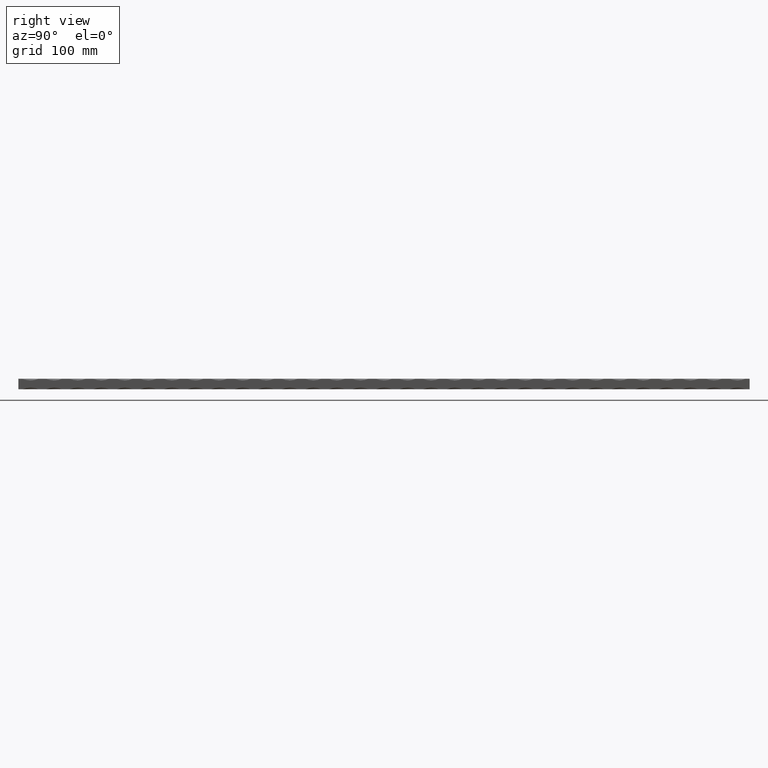
[diagram: clean part render]
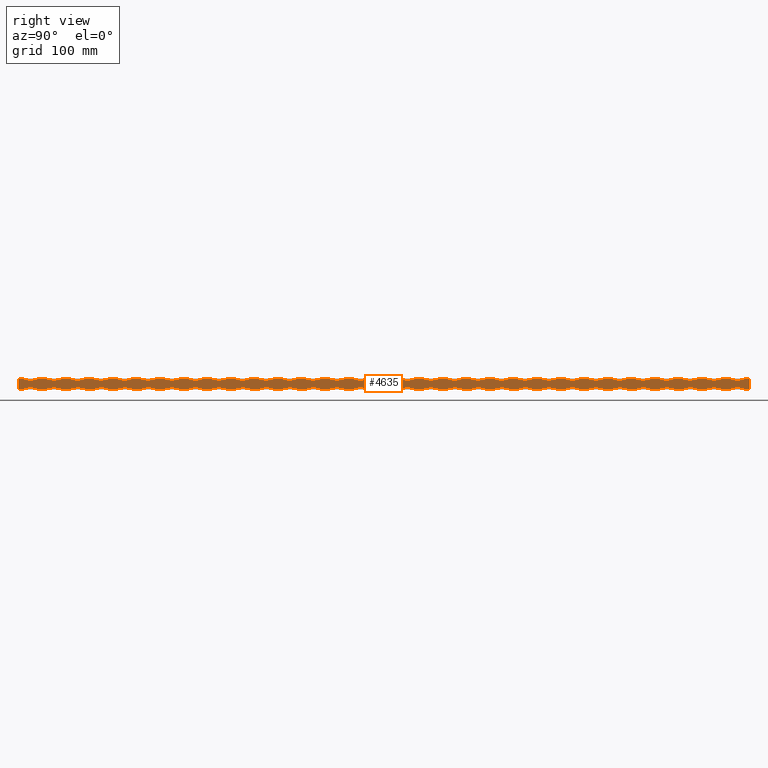
[diagram: same view with one face highlighted and labeled with its STEP entity id]
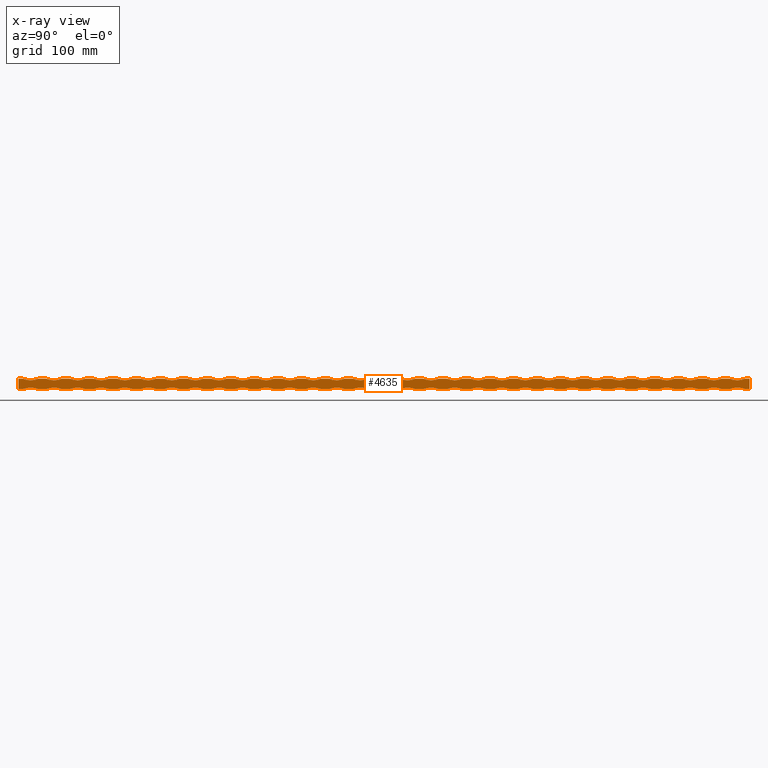
[diagram: x-ray of the same camera — body ghosted, the highlighted face saturated]
A machine part, right view. The second image highlights one B-rep face of the part: STEP entity #4635.
The next image is the same camera in x-ray: the body ghosted, the highlighted face saturated — about 0% of this face is hidden behind the body in this view.
In plain terms, the highlighted planar face has unit normal (-1, 0, 0).
Its self-contained STEP definition (entity closure, byte-faithful):
#6 = EDGE_CURVE ( 'NONE', #3308, #13469, #11347, .T. ) ;
#71 = LINE ( 'NONE', #5425, #3220 ) ;
#128 = ORIENTED_EDGE ( 'NONE', *, *, #14238, .T. ) ;
#159 = VERTEX_POINT ( 'NONE', #4299 ) ;
#166 = DIRECTION ( 'NONE',  ( -1.000000000000000000, 0.0000000000000000000, 2.668805347656626200E-016 ) ) ;
#170 = ORIENTED_EDGE ( 'NONE', *, *, #9149, .T. ) ;
#178 = EDGE_CURVE ( 'NONE', #10039, #3303, #13284, .T. ) ;
#189 = AXIS2_PLACEMENT_3D ( 'NONE', #5021, #14020, #453 ) ;
#195 = CARTESIAN_POINT ( 'NONE',  ( 6.499999999999987600, -116.0000000000000000, 30.50000000000000000 ) ) ;
#201 = CARTESIAN_POINT ( 'NONE',  ( 6.499999999999983100, -232.0000000000000000, -30.50000000000000000 ) ) ;
#221 = CARTESIAN_POINT ( 'NONE',  ( 6.499999999999997300, 450.0000000000000000, -6.499999999999999100 ) ) ;
#239 = DIRECTION ( 'NONE',  ( -1.000000000000000000, 0.0000000000000000000, 2.668805347656626200E-016 ) ) ;
#251 = VERTEX_POINT ( 'NONE', #4743 ) ;
#269 = LINE ( 'NONE', #2864, #1484 ) ;
#286 = AXIS2_PLACEMENT_3D ( 'NONE', #1749, #1939, #7549 ) ;
#287 = CARTESIAN_POINT ( 'NONE',  ( 6.499999999999976000, -68.00000000000000000, 6.500000000000000900 ) ) ;
#302 = CARTESIAN_POINT ( 'NONE',  ( 6.499999999999968900, 203.0000000000000000, 30.50000000000000000 ) ) ;
#333 = CARTESIAN_POINT ( 'NONE',  ( 6.499999999999973400, 116.0000000000000000, 30.50000000000000000 ) ) ;
#356 = VERTEX_POINT ( 'NONE', #1550 ) ;
#375 = ORIENTED_EDGE ( 'NONE', *, *, #9473, .F. ) ;
#377 = DIRECTION ( 'NONE',  ( -1.000000000000000000, 0.0000000000000000000, 2.668805347656626200E-016 ) ) ;
#453 = DIRECTION ( 'NONE',  ( 2.668805347656625700E-016, 0.0000000000000000000, 1.000000000000000000 ) ) ;
#454 = ORIENTED_EDGE ( 'NONE', *, *, #12233, .T. ) ;
#473 = AXIS2_PLACEMENT_3D ( 'NONE', #1451, #9315, #8200 ) ;
#489 = LINE ( 'NONE', #1193, #2785 ) ;
#495 = EDGE_CURVE ( 'NONE', #2002, #4431, #10630, .T. ) ;
#510 = CARTESIAN_POINT ( 'NONE',  ( 6.499999999999997300, 450.0000000000000000, -6.499999999999999100 ) ) ;
#535 = DIRECTION ( 'NONE',  ( 2.668805347656625700E-016, 0.0000000000000000000, 1.000000000000000000 ) ) ;
#538 = DIRECTION ( 'NONE',  ( -0.0000000000000000000, -1.000000000000000000, -0.0000000000000000000 ) ) ;
#556 = DIRECTION ( 'NONE',  ( -0.0000000000000000000, -1.000000000000000000, -0.0000000000000000000 ) ) ;
#565 = VERTEX_POINT ( 'NONE', #6845 ) ;
#584 = ORIENTED_EDGE ( 'NONE', *, *, #11377, .F. ) ;
#608 = CARTESIAN_POINT ( 'NONE',  ( 6.499999999999961800, 116.0000000000000000, -30.50000000000000000 ) ) ;
#613 = VERTEX_POINT ( 'NONE', #2513 ) ;
#625 = CARTESIAN_POINT ( 'NONE',  ( 6.500000000000002700, -425.0000000000000000, 6.500000000000000900 ) ) ;
#637 = DIRECTION ( 'NONE',  ( -0.0000000000000000000, -1.000000000000000000, -0.0000000000000000000 ) ) ;
#648 = CARTESIAN_POINT ( 'NONE',  ( 6.499999999999997300, -450.0000000000000000, -6.499999999999999100 ) ) ;
#655 = VERTEX_POINT ( 'NONE', #1440 ) ;
#656 = ORIENTED_EDGE ( 'NONE', *, *, #9062, .T. ) ;
#658 = DIRECTION ( 'NONE',  ( 2.668805347656625700E-016, 0.0000000000000000000, 1.000000000000000000 ) ) ;
#666 = CARTESIAN_POINT ( 'NONE',  ( 6.499999999999997300, 450.0000000000000000, -6.499999999999999100 ) ) ;
#673 = DIRECTION ( 'NONE',  ( -0.0000000000000000000, -1.000000000000000000, -0.0000000000000000000 ) ) ;
#676 = ORIENTED_EDGE ( 'NONE', *, *, #13273, .T. ) ;
#692 = VECTOR ( 'NONE', #1552, 1000.000000000000000 ) ;
#696 = CARTESIAN_POINT ( 'NONE',  ( 6.499999999999950300, 367.0000000000000000, 6.500000000000000900 ) ) ;
#708 = LINE ( 'NONE', #221, #9064 ) ;
#710 = ORIENTED_EDGE ( 'NONE', *, *, #1847, .F. ) ;
#766 = CIRCLE ( 'NONE', #10468, 26.00000000000000400 ) ;
#769 = CARTESIAN_POINT ( 'NONE',  ( 6.499999999999967100, 29.00000000000000000, -30.50000000000000000 ) ) ;
#784 = EDGE_CURVE ( 'NONE', #11901, #10136, #9201, .T. ) ;
#796 = CARTESIAN_POINT ( 'NONE',  ( 6.499999999999944000, 406.0000000000000000, -30.50000000000000000 ) ) ;
#802 = DIRECTION ( 'NONE',  ( 2.668805347656625700E-016, 0.0000000000000000000, 1.000000000000000000 ) ) ;
#803 = LINE ( 'NONE', #14204, #12854 ) ;
#808 = ORIENTED_EDGE ( 'NONE', *, *, #3794, .F. ) ;
#818 = CARTESIAN_POINT ( 'NONE',  ( 6.500000000000000900, -445.0000000000000000, 6.500000000000000900 ) ) ;
#851 = VERTEX_POINT ( 'NONE', #14302 ) ;
#864 = DIRECTION ( 'NONE',  ( -1.000000000000000000, 0.0000000000000000000, 2.668805347656626200E-016 ) ) ;
#878 = ORIENTED_EDGE ( 'NONE', *, *, #12104, .T. ) ;
#879 = DIRECTION ( 'NONE',  ( 2.668805347656625700E-016, 0.0000000000000000000, 1.000000000000000000 ) ) ;
#882 = CARTESIAN_POINT ( 'NONE',  ( 6.499999999999997300, 450.0000000000000000, -6.499999999999999100 ) ) ;
#888 = CIRCLE ( 'NONE', #5769, 26.00000000000000400 ) ;
#898 = VERTEX_POINT ( 'NONE', #11219 ) ;
#932 = CARTESIAN_POINT ( 'NONE',  ( 6.499999999999997300, 450.0000000000000000, -6.499999999999999100 ) ) ;
#944 = EDGE_CURVE ( 'NONE', #159, #5995, #7223, .T. ) ;
#948 = ORIENTED_EDGE ( 'NONE', *, *, #13489, .T. ) ;
#958 = CARTESIAN_POINT ( 'NONE',  ( 6.499999999999990200, -348.0000000000000600, -30.50000000000000000 ) ) ;
#961 = DIRECTION ( 'NONE',  ( -1.000000000000000000, 0.0000000000000000000, 2.668805347656626200E-016 ) ) ;
#975 = CARTESIAN_POINT ( 'NONE',  ( 6.499999999999965400, 58.00000000000000000, -30.50000000000000000 ) ) ;
#977 = LINE ( 'NONE', #8962, #1145 ) ;
#992 = VECTOR ( 'NONE', #8601, 1000.000000000000000 ) ;
#997 = ORIENTED_EDGE ( 'NONE', *, *, #9857, .T. ) ;
#1001 = DIRECTION ( 'NONE',  ( -0.0000000000000000000, -1.000000000000000000, -0.0000000000000000000 ) ) ;
#1005 = CIRCLE ( 'NONE', #11736, 26.00000000000000400 ) ;
#1043 = ORIENTED_EDGE ( 'NONE', *, *, #10368, .T. ) ;
#1050 = CARTESIAN_POINT ( 'NONE',  ( 6.499999999999995600, -213.0000000000000600, -6.500000000000000900 ) ) ;
#1069 = EDGE_CURVE ( 'NONE', #251, #5073, #13602, .T. ) ;
#1072 = DIRECTION ( 'NONE',  ( -1.000000000000000000, 0.0000000000000000000, 2.668805347656626200E-016 ) ) ;
#1103 = VERTEX_POINT ( 'NONE', #2758 ) ;
#1117 = CIRCLE ( 'NONE', #13757, 26.00000000000000400 ) ;
#1145 = VECTOR ( 'NONE', #2128, 1000.000000000000000 ) ;
#1153 = CARTESIAN_POINT ( 'NONE',  ( 6.500000000000002700, -309.0000000000000000, 6.500000000000000900 ) ) ;
#1193 = CARTESIAN_POINT ( 'NONE',  ( 6.500000000000000900, 450.0000000000000000, 6.500000000000000900 ) ) ;
#1201 = ORIENTED_EDGE ( 'NONE', *, *, #12452, .T. ) ;
#1208 = CARTESIAN_POINT ( 'NONE',  ( 6.500000000000008000, -435.0000000000000000, 30.50000000000000000 ) ) ;
#1244 = ORIENTED_EDGE ( 'NONE', *, *, #1539, .T. ) ;
#1245 = DIRECTION ( 'NONE',  ( -0.0000000000000000000, -1.000000000000000000, -0.0000000000000000000 ) ) ;
#1246 = VERTEX_POINT ( 'NONE', #4388 ) ;
#1250 = DIRECTION ( 'NONE',  ( -1.000000000000000000, 0.0000000000000000000, 2.668805347656626200E-016 ) ) ;
#1271 = AXIS2_PLACEMENT_3D ( 'NONE', #8075, #7076, #13808 ) ;
#1293 = EDGE_CURVE ( 'NONE', #14138, #10039, #6691, .T. ) ;
#1297 = DIRECTION ( 'NONE',  ( 2.668805347656625700E-016, 0.0000000000000000000, 1.000000000000000000 ) ) ;
#1330 = LINE ( 'NONE', #11291, #11976 ) ;
#1338 = VERTEX_POINT ( 'NONE', #3518 ) ;
#1339 = DIRECTION ( 'NONE',  ( -0.0000000000000000000, -1.000000000000000000, -0.0000000000000000000 ) ) ;
#1351 = DIRECTION ( 'NONE',  ( 2.668805347656625700E-016, 0.0000000000000000000, 1.000000000000000000 ) ) ;
#1359 = CIRCLE ( 'NONE', #9377, 26.00000000000000400 ) ;
#1360 = DIRECTION ( 'NONE',  ( 2.668805347656625700E-016, 0.0000000000000000000, 1.000000000000000000 ) ) ;
#1373 = VECTOR ( 'NONE', #4246, 1000.000000000000000 ) ;
#1378 = CARTESIAN_POINT ( 'NONE',  ( 6.499999999999997300, 450.0000000000000000, -6.499999999999999100 ) ) ;
#1386 = EDGE_CURVE ( 'NONE', #5557, #13730, #10601, .T. ) ;
#1389 = ORIENTED_EDGE ( 'NONE', *, *, #10691, .T. ) ;
#1396 = EDGE_CURVE ( 'NONE', #1755, #9411, #9734, .T. ) ;
#1397 = AXIS2_PLACEMENT_3D ( 'NONE', #5387, #961, #3157 ) ;
#1400 = CIRCLE ( 'NONE', #2366, 26.00000000000000400 ) ;
#1416 = EDGE_CURVE ( 'NONE', #9622, #8438, #13437, .T. ) ;
#1432 = ORIENTED_EDGE ( 'NONE', *, *, #12737, .F. ) ;
#1440 = CARTESIAN_POINT ( 'NONE',  ( 6.499999999999976000, -48.00000000000000000, -6.500000000000000900 ) ) ;
#1451 = CARTESIAN_POINT ( 'NONE',  ( 6.500000000000006200, -406.0000000000000000, 30.50000000000000000 ) ) ;
#1478 = CARTESIAN_POINT ( 'NONE',  ( 6.499999999999984000, -58.00000000000000000, 30.50000000000000000 ) ) ;
#1482 = LINE ( 'NONE', #2840, #5043 ) ;
#1484 = VECTOR ( 'NONE', #556, 1000.000000000000000 ) ;
#1501 = EDGE_CURVE ( 'NONE', #9527, #6297, #14640, .T. ) ;
#1528 = VECTOR ( 'NONE', #5473, 1000.000000000000000 ) ;
#1539 = EDGE_CURVE ( 'NONE', #3304, #1246, #9014, .T. ) ;
#1547 = ORIENTED_EDGE ( 'NONE', *, *, #12512, .T. ) ;
#1550 = CARTESIAN_POINT ( 'NONE',  ( 6.499999999999999100, -416.0000000000000600, 6.500000000000000900 ) ) ;
#1552 = DIRECTION ( 'NONE',  ( -0.0000000000000000000, -1.000000000000000000, -0.0000000000000000000 ) ) ;
#1568 = VERTEX_POINT ( 'NONE', #1984 ) ;
#1616 = CIRCLE ( 'NONE', #1397, 26.00000000000000400 ) ;
#1646 = CARTESIAN_POINT ( 'NONE',  ( 6.500000000000000900, 450.0000000000000000, 6.500000000000000900 ) ) ;
#1675 = CARTESIAN_POINT ( 'NONE',  ( 6.499999999999977800, -77.00000000000001400, -6.500000000000000900 ) ) ;
#1687 = CIRCLE ( 'NONE', #12552, 26.00000000000000400 ) ;
#1690 = CARTESIAN_POINT ( 'NONE',  ( 6.499999999999982200, -29.00000000000000000, 30.50000000000000000 ) ) ;
#1696 = LINE ( 'NONE', #3765, #6847 ) ;
#1749 = CARTESIAN_POINT ( 'NONE',  ( 6.499999999999942300, 435.0000000000000000, -30.50000000000000000 ) ) ;
#1751 = CARTESIAN_POINT ( 'NONE',  ( 6.499999999999999100, -280.0000000000000000, 6.500000000000000900 ) ) ;
#1755 = VERTEX_POINT ( 'NONE', #12079 ) ;
#1773 = ORIENTED_EDGE ( 'NONE', *, *, #9495, .T. ) ;
#1834 = VERTEX_POINT ( 'NONE', #4203 ) ;
#1847 = EDGE_CURVE ( 'NONE', #3514, #12083, #5616, .T. ) ;
#1849 = CIRCLE ( 'NONE', #4243, 26.00000000000000400 ) ;
#1865 = VERTEX_POINT ( 'NONE', #3223 ) ;
#1871 = VERTEX_POINT ( 'NONE', #5352 ) ;
#1882 = CIRCLE ( 'NONE', #286, 26.00000000000000400 ) ;
#1883 = ORIENTED_EDGE ( 'NONE', *, *, #6101, .T. ) ;
#1912 = EDGE_CURVE ( 'NONE', #4714, #2457, #10231, .T. ) ;
#1918 = DIRECTION ( 'NONE',  ( -0.0000000000000000000, -1.000000000000000000, -0.0000000000000000000 ) ) ;
#1930 = CARTESIAN_POINT ( 'NONE',  ( 6.499999999999976900, 58.00000000000000000, 30.50000000000000000 ) ) ;
#1939 = DIRECTION ( 'NONE',  ( -1.000000000000000000, 0.0000000000000000000, 2.668805347656626200E-016 ) ) ;
#1948 = DIRECTION ( 'NONE',  ( -0.0000000000000000000, -1.000000000000000000, -0.0000000000000000000 ) ) ;
#1955 = CARTESIAN_POINT ( 'NONE',  ( 6.499999999999962700, 164.0000000000000000, 6.500000000000000900 ) ) ;
#1963 = VERTEX_POINT ( 'NONE', #5689 ) ;
#1983 = DIRECTION ( 'NONE',  ( -1.000000000000000000, 0.0000000000000000000, 2.668805347656626200E-016 ) ) ;
#1984 = CARTESIAN_POINT ( 'NONE',  ( 6.499999999999952000, 358.0000000000000600, -6.500000000000000900 ) ) ;
#1991 = CIRCLE ( 'NONE', #9747, 26.00000000000000400 ) ;
#2002 = VERTEX_POINT ( 'NONE', #6181 ) ;
#2022 = CARTESIAN_POINT ( 'NONE',  ( 6.499999999999999100, 18.99999999999992500, -6.500000000000000900 ) ) ;
#2031 = CARTESIAN_POINT ( 'NONE',  ( 6.499999999999999100, 279.9999999999999400, -6.500000000000000900 ) ) ;
#2035 = VERTEX_POINT ( 'NONE', #14100 ) ;
#2075 = CARTESIAN_POINT ( 'NONE',  ( 6.499999999999996400, -387.0000000000000000, 6.500000000000000900 ) ) ;
#2079 = DIRECTION ( 'NONE',  ( -1.000000000000000000, 0.0000000000000000000, 2.668805347656626200E-016 ) ) ;
#2089 = CARTESIAN_POINT ( 'NONE',  ( 6.499999999999999100, 444.9999999999998900, 6.500000000000000900 ) ) ;
#2097 = CARTESIAN_POINT ( 'NONE',  ( 6.499999999999997300, 450.0000000000000000, -6.499999999999999100 ) ) ;
#2122 = CARTESIAN_POINT ( 'NONE',  ( 6.499999999999955600, 280.0000000000000000, 6.500000000000000900 ) ) ;
#2128 = DIRECTION ( 'NONE',  ( -0.0000000000000000000, -1.000000000000000000, -0.0000000000000000000 ) ) ;
#2168 = AXIS2_PLACEMENT_3D ( 'NONE', #9126, #3370, #5641 ) ;
#2185 = DIRECTION ( 'NONE',  ( -1.000000000000000000, 0.0000000000000000000, 2.668805347656626200E-016 ) ) ;
#2193 = ORIENTED_EDGE ( 'NONE', *, *, #4240, .T. ) ;
#2209 = CARTESIAN_POINT ( 'NONE',  ( 6.499999999999969800, 174.0000000000000300, 30.50000000000000000 ) ) ;
#2213 = LINE ( 'NONE', #3142, #7024 ) ;
#2219 = VERTEX_POINT ( 'NONE', #5624 ) ;
#2242 = EDGE_CURVE ( 'NONE', #11996, #6206, #7546, .T. ) ;
#2245 = CARTESIAN_POINT ( 'NONE',  ( 6.499999999999997300, 450.0000000000000000, -6.499999999999999100 ) ) ;
#2262 = VERTEX_POINT ( 'NONE', #5670 ) ;
#2271 = LINE ( 'NONE', #9638, #2640 ) ;
#2276 = DIRECTION ( 'NONE',  ( 2.668805347656625700E-016, 0.0000000000000000000, 1.000000000000000000 ) ) ;
#2278 = CARTESIAN_POINT ( 'NONE',  ( 6.499999999999980500, 0.0000000000000000000, 30.50000000000000000 ) ) ;
#2283 = ORIENTED_EDGE ( 'NONE', *, *, #9611, .T. ) ;
#2288 = DIRECTION ( 'NONE',  ( -1.000000000000000000, 0.0000000000000000000, 2.668805347656626200E-016 ) ) ;
#2303 = DIRECTION ( 'NONE',  ( -1.000000000000000000, 0.0000000000000000000, 2.668805347656626200E-016 ) ) ;
#2310 = VERTEX_POINT ( 'NONE', #5817 ) ;
#2321 = CARTESIAN_POINT ( 'NONE',  ( 6.500000000000004400, -377.0000000000000000, 30.50000000000000000 ) ) ;
#2339 = ORIENTED_EDGE ( 'NONE', *, *, #3256, .T. ) ;
#2353 = CIRCLE ( 'NONE', #9317, 26.00000000000000400 ) ;
#2361 = CARTESIAN_POINT ( 'NONE',  ( 6.499999999999997300, 450.0000000000000000, -6.499999999999999100 ) ) ;
#2364 = VERTEX_POINT ( 'NONE', #6851 ) ;
#2366 = AXIS2_PLACEMENT_3D ( 'NONE', #195, #9322, #10362 ) ;
#2368 = CIRCLE ( 'NONE', #14119, 26.00000000000000400 ) ;
#2378 = ORIENTED_EDGE ( 'NONE', *, *, #14555, .T. ) ;
#2380 = CARTESIAN_POINT ( 'NONE',  ( 6.499999999999967100, 232.0000000000000000, 30.50000000000000000 ) ) ;
#2419 = EDGE_CURVE ( 'NONE', #2999, #10319, #10053, .T. ) ;
#2420 = VECTOR ( 'NONE', #5451, 1000.000000000000000 ) ;
#2434 = CARTESIAN_POINT ( 'NONE',  ( 6.500000000000000900, 450.0000000000000000, 6.500000000000000900 ) ) ;
#2457 = VERTEX_POINT ( 'NONE', #11918 ) ;
#2466 = CIRCLE ( 'NONE', #6664, 26.00000000000000400 ) ;
#2485 = EDGE_CURVE ( 'NONE', #8985, #8438, #4176, .T. ) ;
#2508 = LINE ( 'NONE', #2936, #11241 ) ;
#2510 = DIRECTION ( 'NONE',  ( -1.000000000000000000, 0.0000000000000000000, 2.668805347656626200E-016 ) ) ;
#2513 = CARTESIAN_POINT ( 'NONE',  ( 6.499999999999987600, -222.0000000000000000, -6.500000000000000900 ) ) ;
#2516 = CARTESIAN_POINT ( 'NONE',  ( 6.499999999999997300, -261.0000000000000000, 30.50000000000000000 ) ) ;
#2523 = DIRECTION ( 'NONE',  ( -0.0000000000000000000, -1.000000000000000000, -0.0000000000000000000 ) ) ;
#2548 = CIRCLE ( 'NONE', #4201, 26.00000000000000400 ) ;
#2567 = DIRECTION ( 'NONE',  ( -1.000000000000000000, 0.0000000000000000000, 2.668805347656626200E-016 ) ) ;
#2581 = ORIENTED_EDGE ( 'NONE', *, *, #8646, .T. ) ;
#2616 = CARTESIAN_POINT ( 'NONE',  ( 6.499999999999999100, -39.00000000000005700, -6.500000000000000900 ) ) ;
#2640 = VECTOR ( 'NONE', #5062, 1000.000000000000000 ) ;
#2681 = ORIENTED_EDGE ( 'NONE', *, *, #944, .T. ) ;
#2713 = EDGE_CURVE ( 'NONE', #851, #4284, #7714, .T. ) ;
#2750 = CIRCLE ( 'NONE', #4451, 26.00000000000000400 ) ;
#2758 = CARTESIAN_POINT ( 'NONE',  ( 6.499999999999948500, 416.0000000000000600, -6.500000000000000900 ) ) ;
#2770 = CIRCLE ( 'NONE', #13934, 26.00000000000000400 ) ;
#2774 = CARTESIAN_POINT ( 'NONE',  ( 6.499999999999977800, -97.00000000000000000, 6.500000000000000900 ) ) ;
#2785 = VECTOR ( 'NONE', #1245, 1000.000000000000000 ) ;
#2821 = CARTESIAN_POINT ( 'NONE',  ( 6.500000000000000900, 450.0000000000000000, 6.500000000000000900 ) ) ;
#2829 = ORIENTED_EDGE ( 'NONE', *, *, #14300, .T. ) ;
#2840 = CARTESIAN_POINT ( 'NONE',  ( 6.499999999999997300, 450.0000000000000000, -6.499999999999999100 ) ) ;
#2864 = CARTESIAN_POINT ( 'NONE',  ( 6.500000000000000900, 450.0000000000000000, 6.500000000000000900 ) ) ;
#2865 = CARTESIAN_POINT ( 'NONE',  ( 6.499999999999953800, 329.0000000000000000, -6.500000000000000900 ) ) ;
#2869 = ORIENTED_EDGE ( 'NONE', *, *, #7776, .F. ) ;
#2887 = VERTEX_POINT ( 'NONE', #5827 ) ;
#2919 = CARTESIAN_POINT ( 'NONE',  ( 6.499999999999999100, -396.0000000000000000, -6.500000000000000900 ) ) ;
#2936 = CARTESIAN_POINT ( 'NONE',  ( 6.500000000000000900, 450.0000000000000000, 6.500000000000000900 ) ) ;
#2945 = EDGE_CURVE ( 'NONE', #356, #5566, #14606, .T. ) ;
#2954 = ORIENTED_EDGE ( 'NONE', *, *, #8238, .T. ) ;
#2972 = ORIENTED_EDGE ( 'NONE', *, *, #9912, .T. ) ;
#2999 = VERTEX_POINT ( 'NONE', #4885 ) ;
#3031 = EDGE_CURVE ( 'NONE', #11215, #2364, #2750, .T. ) ;
#3049 = AXIS2_PLACEMENT_3D ( 'NONE', #12673, #377, #4792 ) ;
#3066 = ORIENTED_EDGE ( 'NONE', *, *, #2485, .F. ) ;
#3077 = VERTEX_POINT ( 'NONE', #14043 ) ;
#3101 = ORIENTED_EDGE ( 'NONE', *, *, #9200, .T. ) ;
#3107 = DIRECTION ( 'NONE',  ( -1.000000000000000000, 0.0000000000000000000, 2.668805347656626200E-016 ) ) ;
#3140 = VECTOR ( 'NONE', #9870, 1000.000000000000000 ) ;
#3142 = CARTESIAN_POINT ( 'NONE',  ( 6.499999999999997300, 450.0000000000000000, -6.499999999999999100 ) ) ;
#3157 = DIRECTION ( 'NONE',  ( 2.668805347656625700E-016, 0.0000000000000000000, 1.000000000000000000 ) ) ;
#3201 = CARTESIAN_POINT ( 'NONE',  ( 6.499999999999949400, 319.0000000000000000, -30.50000000000000000 ) ) ;
#3209 = DIRECTION ( 'NONE',  ( -0.0000000000000000000, -1.000000000000000000, -0.0000000000000000000 ) ) ;
#3212 = DIRECTION ( 'NONE',  ( 2.668805347656625700E-016, 0.0000000000000000000, 1.000000000000000000 ) ) ;
#3220 = VECTOR ( 'NONE', #1001, 1000.000000000000000 ) ;
#3223 = CARTESIAN_POINT ( 'NONE',  ( 6.499999999999999100, -367.0000000000000000, 6.500000000000000900 ) ) ;
#3244 = DIRECTION ( 'NONE',  ( 2.668805347656626200E-016, 0.0000000000000000000, 1.000000000000000000 ) ) ;
#3253 = CARTESIAN_POINT ( 'NONE',  ( 6.500000000000002700, -338.0000000000000000, 6.500000000000000900 ) ) ;
#3256 = EDGE_CURVE ( 'NONE', #7115, #6129, #8431, .T. ) ;
#3268 = CARTESIAN_POINT ( 'NONE',  ( 6.499999999999984000, -164.0000000000000000, -6.500000000000000900 ) ) ;
#3270 = CARTESIAN_POINT ( 'NONE',  ( 6.499999999999995600, 221.9999999999999100, -6.500000000000000900 ) ) ;
#3273 = EDGE_CURVE ( 'NONE', #6206, #2035, #7353, .T. ) ;
#3303 = VERTEX_POINT ( 'NONE', #2122 ) ;
#3304 = VERTEX_POINT ( 'NONE', #2031 ) ;
#3308 = VERTEX_POINT ( 'NONE', #5565 ) ;
#3312 = EDGE_CURVE ( 'NONE', #13961, #2219, #2368, .T. ) ;
#3314 = LINE ( 'NONE', #666, #13979 ) ;
#3321 = CARTESIAN_POINT ( 'NONE',  ( 6.500000000000000900, 450.0000000000000000, 6.500000000000000900 ) ) ;
#3328 = ORIENTED_EDGE ( 'NONE', *, *, #11133, .T. ) ;
#3342 = DIRECTION ( 'NONE',  ( -1.000000000000000000, 0.0000000000000000000, 2.668805347656626200E-016 ) ) ;
#3352 = ORIENTED_EDGE ( 'NONE', *, *, #8348, .F. ) ;
#3366 = ORIENTED_EDGE ( 'NONE', *, *, #10928, .T. ) ;
#3370 = DIRECTION ( 'NONE',  ( -1.000000000000000000, 0.0000000000000000000, 2.668805347656626200E-016 ) ) ;
#3381 = EDGE_CURVE ( 'NONE', #6661, #10136, #6467, .T. ) ;
#3397 = CARTESIAN_POINT ( 'NONE',  ( 6.499999999999959100, 222.0000000000000000, 6.500000000000000900 ) ) ;
#3410 = DIRECTION ( 'NONE',  ( -1.000000000000000000, 0.0000000000000000000, 2.668805347656626200E-016 ) ) ;
#3412 = DIRECTION ( 'NONE',  ( -0.0000000000000000000, -1.000000000000000000, -0.0000000000000000000 ) ) ;
#3415 = LINE ( 'NONE', #11102, #5412 ) ;
#3428 = LINE ( 'NONE', #14150, #12696 ) ;
#3443 = CIRCLE ( 'NONE', #6286, 26.00000000000000400 ) ;
#3460 = DIRECTION ( 'NONE',  ( -1.000000000000000000, 0.0000000000000000000, 2.668805347656626200E-016 ) ) ;
#3472 = EDGE_CURVE ( 'NONE', #12808, #14138, #6814, .T. ) ;
#3491 = VERTEX_POINT ( 'NONE', #12744 ) ;
#3514 = VERTEX_POINT ( 'NONE', #5953 ) ;
#3518 = CARTESIAN_POINT ( 'NONE',  ( 6.499999999999999100, 212.9999999999999400, 6.500000000000000900 ) ) ;
#3519 = VERTEX_POINT ( 'NONE', #2774 ) ;
#3555 = CARTESIAN_POINT ( 'NONE',  ( 6.499999999999995600, -329.0000000000000000, -6.500000000000000900 ) ) ;
#3571 = DIRECTION ( 'NONE',  ( 2.668805347656625700E-016, 0.0000000000000000000, 1.000000000000000000 ) ) ;
#3590 = CARTESIAN_POINT ( 'NONE',  ( 6.499999999999995600, -358.0000000000000600, -6.500000000000000900 ) ) ;
#3606 = DIRECTION ( 'NONE',  ( 2.668805347656625700E-016, 0.0000000000000000000, 1.000000000000000000 ) ) ;
#3620 = DIRECTION ( 'NONE',  ( -1.000000000000000000, 0.0000000000000000000, 2.668805347656626200E-016 ) ) ;
#3625 = DIRECTION ( 'NONE',  ( -0.0000000000000000000, -1.000000000000000000, -0.0000000000000000000 ) ) ;
#3630 = CARTESIAN_POINT ( 'NONE',  ( 6.499999999999997300, 450.0000000000000000, -6.499999999999999100 ) ) ;
#3655 = VERTEX_POINT ( 'NONE', #9642 ) ;
#3665 = CIRCLE ( 'NONE', #9413, 26.00000000000000400 ) ;
#3684 = EDGE_CURVE ( 'NONE', #4235, #9537, #269, .T. ) ;
#3692 = CARTESIAN_POINT ( 'NONE',  ( 6.499999999999947600, 348.0000000000000600, -30.50000000000000000 ) ) ;
#3695 = ORIENTED_EDGE ( 'NONE', *, *, #11517, .T. ) ;
#3702 = EDGE_CURVE ( 'NONE', #3077, #12808, #14248, .T. ) ;
#3720 = VECTOR ( 'NONE', #673, 1000.000000000000000 ) ;
#3729 = ORIENTED_EDGE ( 'NONE', *, *, #6842, .T. ) ;
#3753 = ORIENTED_EDGE ( 'NONE', *, *, #13505, .T. ) ;
#3760 = ORIENTED_EDGE ( 'NONE', *, *, #5259, .F. ) ;
#3765 = CARTESIAN_POINT ( 'NONE',  ( 6.499999999999997300, 450.0000000000000000, -6.499999999999999100 ) ) ;
#3776 = CARTESIAN_POINT ( 'NONE',  ( 6.500000000000000900, 450.0000000000000000, 6.500000000000000900 ) ) ;
#3794 = EDGE_CURVE ( 'NONE', #4714, #613, #11790, .T. ) ;
#3866 = CARTESIAN_POINT ( 'NONE',  ( 6.499999999999999100, 47.99999999999992900, -6.500000000000000900 ) ) ;
#3868 = AXIS2_PLACEMENT_3D ( 'NONE', #3201, #1983, #9941 ) ;
#3923 = LINE ( 'NONE', #8205, #12628 ) ;
#3929 = CARTESIAN_POINT ( 'NONE',  ( 6.499999999999945800, 377.0000000000000000, -30.50000000000000000 ) ) ;
#3947 = VERTEX_POINT ( 'NONE', #3590 ) ;
#3954 = AXIS2_PLACEMENT_3D ( 'NONE', #2516, #4732, #1351 ) ;
#3977 = AXIS2_PLACEMENT_3D ( 'NONE', #11676, #7188, #4833 ) ;
#3986 = AXIS2_PLACEMENT_3D ( 'NONE', #2380, #5823, #9213 ) ;
#4007 = LINE ( 'NONE', #10639, #7384 ) ;
#4016 = EDGE_CURVE ( 'NONE', #8668, #5345, #2353, .T. ) ;
#4019 = CIRCLE ( 'NONE', #7185, 26.00000000000000400 ) ;
#4045 = EDGE_CURVE ( 'NONE', #898, #2002, #10014, .T. ) ;
#4061 = ORIENTED_EDGE ( 'NONE', *, *, #11682, .T. ) ;
#4070 = ORIENTED_EDGE ( 'NONE', *, *, #7649, .T. ) ;
#4097 = ORIENTED_EDGE ( 'NONE', *, *, #3273, .T. ) ;
#4121 = VERTEX_POINT ( 'NONE', #7370 ) ;
#4175 = DIRECTION ( 'NONE',  ( -0.0000000000000000000, -1.000000000000000000, -0.0000000000000000000 ) ) ;
#4176 = LINE ( 'NONE', #510, #992 ) ;
#4196 = CARTESIAN_POINT ( 'NONE',  ( 6.499999999999997300, 450.0000000000000000, -6.499999999999999100 ) ) ;
#4201 = AXIS2_PLACEMENT_3D ( 'NONE', #2321, #12548, #1297 ) ;
#4203 = CARTESIAN_POINT ( 'NONE',  ( 6.499999999999968900, 68.00000000000000000, -6.500000000000000900 ) ) ;
#4235 = VERTEX_POINT ( 'NONE', #11159 ) ;
#4240 = EDGE_CURVE ( 'NONE', #9432, #9271, #4681, .T. ) ;
#4243 = AXIS2_PLACEMENT_3D ( 'NONE', #7240, #6207, #14263 ) ;
#4246 = DIRECTION ( 'NONE',  ( -0.0000000000000000000, -1.000000000000000000, -0.0000000000000000000 ) ) ;
#4248 = DIRECTION ( 'NONE',  ( 2.668805347656625700E-016, 0.0000000000000000000, 1.000000000000000000 ) ) ;
#4256 = VERTEX_POINT ( 'NONE', #12415 ) ;
#4263 = EDGE_CURVE ( 'NONE', #12634, #3077, #1117, .T. ) ;
#4283 = ORIENTED_EDGE ( 'NONE', *, *, #12125, .F. ) ;
#4284 = VERTEX_POINT ( 'NONE', #4487 ) ;
#4296 = ORIENTED_EDGE ( 'NONE', *, *, #1396, .T. ) ;
#4299 = CARTESIAN_POINT ( 'NONE',  ( 6.499999999999957400, 251.0000000000000000, 6.500000000000000900 ) ) ;
#4305 = VERTEX_POINT ( 'NONE', #2089 ) ;
#4322 = DIRECTION ( 'NONE',  ( 2.668805347656625700E-016, 0.0000000000000000000, 1.000000000000000000 ) ) ;
#4346 = CARTESIAN_POINT ( 'NONE',  ( 6.499999999999962700, 184.0000000000000300, -6.500000000000000900 ) ) ;
#4357 = CARTESIAN_POINT ( 'NONE',  ( 6.499999999999986700, -290.0000000000000600, -30.50000000000000000 ) ) ;
#4372 = VECTOR ( 'NONE', #5279, 1000.000000000000000 ) ;
#4382 = AXIS2_PLACEMENT_3D ( 'NONE', #3692, #7084, #13907 ) ;
#4388 = CARTESIAN_POINT ( 'NONE',  ( 6.499999999999955600, 300.0000000000000600, -6.500000000000000900 ) ) ;
#4394 = AXIS2_PLACEMENT_3D ( 'NONE', #4357, #14360, #12148 ) ;
#4407 = CARTESIAN_POINT ( 'NONE',  ( 6.499999999999999100, 76.99999999999992900, -6.500000000000000900 ) ) ;
#4426 = VERTEX_POINT ( 'NONE', #9214 ) ;
#4431 = VERTEX_POINT ( 'NONE', #6014 ) ;
#4433 = CARTESIAN_POINT ( 'NONE',  ( 6.499999999999997300, 450.0000000000000000, -6.499999999999999100 ) ) ;
#4441 = AXIS2_PLACEMENT_3D ( 'NONE', #1208, #10049, #3212 ) ;
#4451 = AXIS2_PLACEMENT_3D ( 'NONE', #1690, #14181, #9663 ) ;
#4481 = VERTEX_POINT ( 'NONE', #3866 ) ;
#4487 = CARTESIAN_POINT ( 'NONE',  ( 6.499999999999959100, 242.0000000000000300, -6.500000000000000900 ) ) ;
#4507 = CIRCLE ( 'NONE', #3049, 26.00000000000000400 ) ;
#4509 = VERTEX_POINT ( 'NONE', #2919 ) ;
#4511 = DIRECTION ( 'NONE',  ( 2.668805347656625700E-016, 0.0000000000000000000, 1.000000000000000000 ) ) ;
#4528 = EDGE_CURVE ( 'NONE', #11901, #655, #766, .T. ) ;
#4533 = CARTESIAN_POINT ( 'NONE',  ( 6.499999999999999100, -68.00000000000005700, -6.500000000000000900 ) ) ;
#4554 = AXIS2_PLACEMENT_3D ( 'NONE', #13156, #13205, #14269 ) ;
#4570 = VECTOR ( 'NONE', #8406, 1000.000000000000000 ) ;
#4581 = DIRECTION ( 'NONE',  ( -0.0000000000000000000, -1.000000000000000000, -0.0000000000000000000 ) ) ;
#4582 = DIRECTION ( 'NONE',  ( -1.000000000000000000, 0.0000000000000000000, 2.668805347656626200E-016 ) ) ;
#4599 = CARTESIAN_POINT ( 'NONE',  ( 6.499999999999993800, -203.0000000000000000, 30.50000000000000000 ) ) ;
#4603 = ORIENTED_EDGE ( 'NONE', *, *, #11472, .T. ) ;
#4617 = DIRECTION ( 'NONE',  ( -0.0000000000000000000, -1.000000000000000000, -0.0000000000000000000 ) ) ;
#4619 = VERTEX_POINT ( 'NONE', #11046 ) ;
#4625 = VERTEX_POINT ( 'NONE', #6701 ) ;
#4629 = AXIS2_PLACEMENT_3D ( 'NONE', #9005, #14657, #13631 ) ;
#4630 = VERTEX_POINT ( 'NONE', #2075 ) ;
#4635 = ADVANCED_FACE ( 'NONE', ( #13000 ), #13487, .F. ) ;
#4661 = DIRECTION ( 'NONE',  ( -1.000000000000000000, 0.0000000000000000000, 2.668805347656626200E-016 ) ) ;
#4670 = ORIENTED_EDGE ( 'NONE', *, *, #7004, .T. ) ;
#4681 = CIRCLE ( 'NONE', #10939, 26.00000000000000400 ) ;
#4690 = DIRECTION ( 'NONE',  ( -1.000000000000000000, 0.0000000000000000000, 2.668805347656626200E-016 ) ) ;
#4706 = DIRECTION ( 'NONE',  ( 2.668805347656625700E-016, 0.0000000000000000000, 1.000000000000000000 ) ) ;
#4707 = VECTOR ( 'NONE', #1339, 1000.000000000000000 ) ;
#4714 = VERTEX_POINT ( 'NONE', #1050 ) ;
#4717 = EDGE_CURVE ( 'NONE', #10958, #10213, #12647, .T. ) ;
#4732 = DIRECTION ( 'NONE',  ( -1.000000000000000000, 0.0000000000000000000, 2.668805347656626200E-016 ) ) ;
#4743 = CARTESIAN_POINT ( 'NONE',  ( 6.499999999999999100, 163.9999999999999100, -6.500000000000000900 ) ) ;
#4754 = CARTESIAN_POINT ( 'NONE',  ( 6.499999999999966200, 126.0000000000000000, -6.500000000000000900 ) ) ;
#4756 = VECTOR ( 'NONE', #14490, 1000.000000000000000 ) ;
#4761 = AXIS2_PLACEMENT_3D ( 'NONE', #10386, #166, #3606 ) ;
#4790 = DIRECTION ( 'NONE',  ( 2.668805347656625700E-016, 0.0000000000000000000, 1.000000000000000000 ) ) ;
#4792 = DIRECTION ( 'NONE',  ( 2.668805347656625700E-016, 0.0000000000000000000, 1.000000000000000000 ) ) ;
#4795 = VERTEX_POINT ( 'NONE', #3555 ) ;
#4809 = LINE ( 'NONE', #882, #5518 ) ;
#4833 = DIRECTION ( 'NONE',  ( 2.668805347656625700E-016, 0.0000000000000000000, 1.000000000000000000 ) ) ;
#4862 = ORIENTED_EDGE ( 'NONE', *, *, #12996, .T. ) ;
#4865 = CARTESIAN_POINT ( 'NONE',  ( 6.499999999999964500, 155.0000000000000300, -6.500000000000000900 ) ) ;
#4872 = VERTEX_POINT ( 'NONE', #696 ) ;
#4885 = CARTESIAN_POINT ( 'NONE',  ( 6.499999999999999100, -387.0000000000000000, -6.500000000000000900 ) ) ;
#4924 = CARTESIAN_POINT ( 'NONE',  ( 6.500000000000002700, 357.9999999999999400, 6.500000000000000900 ) ) ;
#4936 = AXIS2_PLACEMENT_3D ( 'NONE', #12497, #1250, #5862 ) ;
#4963 = CARTESIAN_POINT ( 'NONE',  ( 6.499999999999999100, 192.9999999999999100, -6.500000000000000900 ) ) ;
#4981 = CARTESIAN_POINT ( 'NONE',  ( 6.500000000000000900, 450.0000000000000000, 6.500000000000000900 ) ) ;
#4985 = VERTEX_POINT ( 'NONE', #7093 ) ;
#4999 = DIRECTION ( 'NONE',  ( -1.000000000000000000, 0.0000000000000000000, 2.668805347656626200E-016 ) ) ;
#5016 = DIRECTION ( 'NONE',  ( -1.000000000000000000, 0.0000000000000000000, 2.668805347656626200E-016 ) ) ;
#5021 = CARTESIAN_POINT ( 'NONE',  ( 6.499999999999961800, 319.0000000000000000, 30.50000000000000000 ) ) ;
#5035 = CARTESIAN_POINT ( 'NONE',  ( 6.499999999999997300, 450.0000000000000000, -6.499999999999999100 ) ) ;
#5039 = CARTESIAN_POINT ( 'NONE',  ( 6.499999999999991100, -280.0000000000000000, -6.500000000000000900 ) ) ;
#5043 = VECTOR ( 'NONE', #13061, 1000.000000000000000 ) ;
#5054 = CARTESIAN_POINT ( 'NONE',  ( 6.499999999999997300, 450.0000000000000000, -6.499999999999999100 ) ) ;
#5062 = DIRECTION ( 'NONE',  ( -0.0000000000000000000, -1.000000000000000000, -0.0000000000000000000 ) ) ;
#5073 = VERTEX_POINT ( 'NONE', #4865 ) ;
#5079 = DIRECTION ( 'NONE',  ( -1.000000000000000000, 0.0000000000000000000, 2.668805347656626200E-016 ) ) ;
#5092 = AXIS2_PLACEMENT_3D ( 'NONE', #3929, #6171, #11883 ) ;
#5096 = VECTOR ( 'NONE', #10759, 1000.000000000000000 ) ;
#5112 = CARTESIAN_POINT ( 'NONE',  ( 6.499999999999989300, -251.0000000000000000, -6.500000000000000900 ) ) ;
#5122 = DIRECTION ( 'NONE',  ( -0.0000000000000000000, -1.000000000000000000, -0.0000000000000000000 ) ) ;
#5216 = CARTESIAN_POINT ( 'NONE',  ( 6.499999999999997300, -450.0000000000000000, -6.499999999999999100 ) ) ;
#5223 = DIRECTION ( 'NONE',  ( -0.0000000000000000000, -1.000000000000000000, -0.0000000000000000000 ) ) ;
#5243 = LINE ( 'NONE', #1378, #6666 ) ;
#5259 = EDGE_CURVE ( 'NONE', #8668, #5332, #4809, .T. ) ;
#5279 = DIRECTION ( 'NONE',  ( -0.0000000000000000000, -1.000000000000000000, -0.0000000000000000000 ) ) ;
#5292 = EDGE_CURVE ( 'NONE', #9299, #10213, #8547, .T. ) ;
#5294 = EDGE_CURVE ( 'NONE', #13469, #3655, #12078, .T. ) ;
#5332 = VERTEX_POINT ( 'NONE', #4346 ) ;
#5345 = VERTEX_POINT ( 'NONE', #12281 ) ;
#5352 = CARTESIAN_POINT ( 'NONE',  ( 6.499999999999979600, -126.0000000000000000, 6.500000000000000900 ) ) ;
#5361 = AXIS2_PLACEMENT_3D ( 'NONE', #2209, #13625, #13675 ) ;
#5387 = CARTESIAN_POINT ( 'NONE',  ( 6.499999999999963600, 87.00000000000001400, -30.50000000000000000 ) ) ;
#5402 = ORIENTED_EDGE ( 'NONE', *, *, #3702, .T. ) ;
#5412 = VECTOR ( 'NONE', #11958, 1000.000000000000000 ) ;
#5420 = CARTESIAN_POINT ( 'NONE',  ( 6.499999999999997300, 450.0000000000000000, -6.499999999999999100 ) ) ;
#5425 = CARTESIAN_POINT ( 'NONE',  ( 6.499999999999997300, 450.0000000000000000, -6.499999999999999100 ) ) ;
#5446 = DIRECTION ( 'NONE',  ( 2.668805347656625700E-016, 0.0000000000000000000, 1.000000000000000000 ) ) ;
#5448 = DIRECTION ( 'NONE',  ( -0.0000000000000000000, -1.000000000000000000, -0.0000000000000000000 ) ) ;
#5451 = DIRECTION ( 'NONE',  ( -2.668805347656626700E-016, -0.0000000000000000000, -1.000000000000000000 ) ) ;
#5454 = VECTOR ( 'NONE', #11869, 1000.000000000000000 ) ;
#5473 = DIRECTION ( 'NONE',  ( -0.0000000000000000000, -1.000000000000000000, -0.0000000000000000000 ) ) ;
#5518 = VECTOR ( 'NONE', #11121, 1000.000000000000000 ) ;
#5535 = CARTESIAN_POINT ( 'NONE',  ( 6.499999999999964500, 135.0000000000000000, 6.500000000000000900 ) ) ;
#5557 = VERTEX_POINT ( 'NONE', #1751 ) ;
#5559 = AXIS2_PLACEMENT_3D ( 'NONE', #5585, #13334, #879 ) ;
#5565 = CARTESIAN_POINT ( 'NONE',  ( 6.499999999999968900, 48.00000000000000000, 6.500000000000000900 ) ) ;
#5566 = VERTEX_POINT ( 'NONE', #625 ) ;
#5575 = DIRECTION ( 'NONE',  ( -0.0000000000000000000, -1.000000000000000000, -0.0000000000000000000 ) ) ;
#5585 = CARTESIAN_POINT ( 'NONE',  ( 6.499999999999954700, 232.0000000000000000, -30.50000000000000000 ) ) ;
#5613 = EDGE_CURVE ( 'NONE', #6208, #4426, #10132, .T. ) ;
#5616 = LINE ( 'NONE', #13335, #7922 ) ;
#5624 = CARTESIAN_POINT ( 'NONE',  ( 6.499999999999992900, -329.0000000000000000, 6.500000000000000900 ) ) ;
#5641 = DIRECTION ( 'NONE',  ( 2.668805347656625700E-016, 0.0000000000000000000, 1.000000000000000000 ) ) ;
#5670 = CARTESIAN_POINT ( 'NONE',  ( 6.500000000000000900, -425.0000000000000000, -6.500000000000000900 ) ) ;
#5673 = DIRECTION ( 'NONE',  ( -0.0000000000000000000, -1.000000000000000000, -0.0000000000000000000 ) ) ;
#5679 = ORIENTED_EDGE ( 'NONE', *, *, #3312, .T. ) ;
#5689 = CARTESIAN_POINT ( 'NONE',  ( 6.499999999999982200, -135.0000000000000000, -6.500000000000000900 ) ) ;
#5698 = CARTESIAN_POINT ( 'NONE',  ( 6.499999999999995600, -232.0000000000000000, 30.50000000000000000 ) ) ;
#5707 = ORIENTED_EDGE ( 'NONE', *, *, #8305, .T. ) ;
#5718 = ORIENTED_EDGE ( 'NONE', *, *, #6633, .T. ) ;
#5737 = DIRECTION ( 'NONE',  ( 2.668805347656625700E-016, 0.0000000000000000000, 1.000000000000000000 ) ) ;
#5747 = ORIENTED_EDGE ( 'NONE', *, *, #5613, .T. ) ;
#5768 = CARTESIAN_POINT ( 'NONE',  ( 6.500000000000000900, 450.0000000000000000, 6.500000000000000900 ) ) ;
#5769 = AXIS2_PLACEMENT_3D ( 'NONE', #796, #12056, #13200 ) ;
#5776 = DIRECTION ( 'NONE',  ( 2.668805347656625700E-016, 0.0000000000000000000, 1.000000000000000000 ) ) ;
#5793 = CIRCLE ( 'NONE', #3977, 26.00000000000000400 ) ;
#5801 = LINE ( 'NONE', #11917, #5454 ) ;
#5807 = DIRECTION ( 'NONE',  ( -0.0000000000000000000, -1.000000000000000000, -0.0000000000000000000 ) ) ;
#5811 = VECTOR ( 'NONE', #5575, 1000.000000000000000 ) ;
#5817 = CARTESIAN_POINT ( 'NONE',  ( 6.499999999999970700, 39.00000000000000000, -6.500000000000000900 ) ) ;
#5823 = DIRECTION ( 'NONE',  ( -1.000000000000000000, 0.0000000000000000000, 2.668805347656626200E-016 ) ) ;
#5826 = VECTOR ( 'NONE', #5448, 1000.000000000000000 ) ;
#5827 = CARTESIAN_POINT ( 'NONE',  ( 6.499999999999999100, 96.99999999999994300, 6.500000000000000900 ) ) ;
#5862 = DIRECTION ( 'NONE',  ( 2.668805347656625700E-016, 0.0000000000000000000, 1.000000000000000000 ) ) ;
#5869 = DIRECTION ( 'NONE',  ( -0.0000000000000000000, -1.000000000000000000, -0.0000000000000000000 ) ) ;
#5879 = CARTESIAN_POINT ( 'NONE',  ( 6.499999999999969800, -29.00000000000000000, -30.50000000000000000 ) ) ;
#5883 = EDGE_CURVE ( 'NONE', #9411, #11215, #9606, .T. ) ;
#5939 = EDGE_CURVE ( 'NONE', #5995, #12436, #12767, .T. ) ;
#5945 = ORIENTED_EDGE ( 'NONE', *, *, #784, .F. ) ;
#5953 = CARTESIAN_POINT ( 'NONE',  ( 6.499999999999999100, -155.0000000000000600, -6.500000000000000900 ) ) ;
#5963 = CARTESIAN_POINT ( 'NONE',  ( 6.499999999999999100, -396.0000000000000000, 6.500000000000000900 ) ) ;
#5978 = VECTOR ( 'NONE', #13009, 1000.000000000000000 ) ;
#5991 = ORIENTED_EDGE ( 'NONE', *, *, #7177, .T. ) ;
#5995 = VERTEX_POINT ( 'NONE', #12604 ) ;
#6010 = LINE ( 'NONE', #9075, #9582 ) ;
#6014 = CARTESIAN_POINT ( 'NONE',  ( 6.499999999999948500, 396.0000000000000000, 6.500000000000000900 ) ) ;
#6030 = DIRECTION ( 'NONE',  ( -1.000000000000000000, 0.0000000000000000000, 2.668805347656626200E-016 ) ) ;
#6036 = ORIENTED_EDGE ( 'NONE', *, *, #10055, .T. ) ;
#6063 = EDGE_CURVE ( 'NONE', #4305, #898, #6213, .T. ) ;
#6065 = EDGE_CURVE ( 'NONE', #13396, #8927, #708, .T. ) ;
#6101 = EDGE_CURVE ( 'NONE', #6397, #9575, #2466, .T. ) ;
#6111 = ORIENTED_EDGE ( 'NONE', *, *, #6956, .F. ) ;
#6127 = CARTESIAN_POINT ( 'NONE',  ( 6.499999999999960000, 145.0000000000000300, -30.50000000000000000 ) ) ;
#6129 = VERTEX_POINT ( 'NONE', #8490 ) ;
#6140 = DIRECTION ( 'NONE',  ( 2.668805347656625700E-016, 0.0000000000000000000, 1.000000000000000000 ) ) ;
#6154 = EDGE_CURVE ( 'NONE', #3947, #10319, #2271, .T. ) ;
#6156 = DIRECTION ( 'NONE',  ( -0.0000000000000000000, -1.000000000000000000, -0.0000000000000000000 ) ) ;
#6162 = CARTESIAN_POINT ( 'NONE',  ( 6.499999999999994700, -406.0000000000000000, -30.50000000000000000 ) ) ;
#6171 = DIRECTION ( 'NONE',  ( -1.000000000000000000, 0.0000000000000000000, 2.668805347656626200E-016 ) ) ;
#6181 = CARTESIAN_POINT ( 'NONE',  ( 6.499999999999999100, 415.9999999999999400, 6.500000000000000900 ) ) ;
#6186 = CARTESIAN_POINT ( 'NONE',  ( 6.500000000000000900, 450.0000000000000000, 6.500000000000000900 ) ) ;
#6206 = VERTEX_POINT ( 'NONE', #10728 ) ;
#6207 = DIRECTION ( 'NONE',  ( -1.000000000000000000, 0.0000000000000000000, 2.668805347656626200E-016 ) ) ;
#6208 = VERTEX_POINT ( 'NONE', #10677 ) ;
#6213 = CIRCLE ( 'NONE', #4761, 26.00000000000000400 ) ;
#6217 = VERTEX_POINT ( 'NONE', #10576 ) ;
#6253 = DIRECTION ( 'NONE',  ( -0.0000000000000000000, -1.000000000000000000, -0.0000000000000000000 ) ) ;
#6266 = CARTESIAN_POINT ( 'NONE',  ( 6.500000000000000900, 450.0000000000000000, 6.500000000000000900 ) ) ;
#6282 = EDGE_CURVE ( 'NONE', #7909, #12083, #7977, .T. ) ;
#6286 = AXIS2_PLACEMENT_3D ( 'NONE', #1930, #7633, #6648 ) ;
#6297 = VERTEX_POINT ( 'NONE', #5112 ) ;
#6313 = ORIENTED_EDGE ( 'NONE', *, *, #10035, .T. ) ;
#6322 = CARTESIAN_POINT ( 'NONE',  ( 6.500000000000000900, 450.0000000000000000, 6.500000000000000900 ) ) ;
#6357 = AXIS2_PLACEMENT_3D ( 'NONE', #10083, #3107, #3244 ) ;
#6367 = ORIENTED_EDGE ( 'NONE', *, *, #14091, .F. ) ;
#6376 = CARTESIAN_POINT ( 'NONE',  ( 6.500000000000000900, 450.0000000000000000, 6.500000000000000900 ) ) ;
#6397 = VERTEX_POINT ( 'NONE', #9783 ) ;
#6422 = CIRCLE ( 'NONE', #12948, 26.00000000000000400 ) ;
#6423 = AXIS2_PLACEMENT_3D ( 'NONE', #11445, #3460, #5776 ) ;
#6427 = DIRECTION ( 'NONE',  ( -0.0000000000000000000, -1.000000000000000000, -0.0000000000000000000 ) ) ;
#6467 = CIRCLE ( 'NONE', #4936, 26.00000000000000400 ) ;
#6475 = ORIENTED_EDGE ( 'NONE', *, *, #7823, .F. ) ;
#6476 = CIRCLE ( 'NONE', #8286, 26.00000000000000400 ) ;
#6489 = VECTOR ( 'NONE', #11756, 1000.000000000000000 ) ;
#6508 = CARTESIAN_POINT ( 'NONE',  ( 6.499999999999999100, 183.9999999999999400, 6.500000000000000900 ) ) ;
#6544 = CARTESIAN_POINT ( 'NONE',  ( 6.499999999999997300, 450.0000000000000000, -6.499999999999999100 ) ) ;
#6564 = DIRECTION ( 'NONE',  ( 2.668805347656625700E-016, 0.0000000000000000000, 1.000000000000000000 ) ) ;
#6579 = ORIENTED_EDGE ( 'NONE', *, *, #13725, .T. ) ;
#6623 = LINE ( 'NONE', #9429, #7150 ) ;
#6633 = EDGE_CURVE ( 'NONE', #7469, #1871, #1400, .T. ) ;
#6636 = EDGE_CURVE ( 'NONE', #6906, #14258, #8154, .T. ) ;
#6638 = CARTESIAN_POINT ( 'NONE',  ( 6.499999999999995600, 105.9999999999999300, -6.500000000000000900 ) ) ;
#6648 = DIRECTION ( 'NONE',  ( 2.668805347656625700E-016, 0.0000000000000000000, 1.000000000000000000 ) ) ;
#6661 = VERTEX_POINT ( 'NONE', #7860 ) ;
#6663 = CARTESIAN_POINT ( 'NONE',  ( 6.499999999999999100, 424.9999999999998900, -6.500000000000000900 ) ) ;
#6664 = AXIS2_PLACEMENT_3D ( 'NONE', #10438, #2510, #12693 ) ;
#6666 = VECTOR ( 'NONE', #10428, 1000.000000000000000 ) ;
#6691 = LINE ( 'NONE', #8873, #12719 ) ;
#6693 = CARTESIAN_POINT ( 'NONE',  ( 6.499999999999988500, -319.0000000000000000, -30.50000000000000000 ) ) ;
#6699 = CIRCLE ( 'NONE', #8647, 26.00000000000000400 ) ;
#6701 = CARTESIAN_POINT ( 'NONE',  ( 6.499999999999968000, 97.00000000000000000, -6.500000000000000900 ) ) ;
#6721 = LINE ( 'NONE', #13362, #13627 ) ;
#6744 = EDGE_CURVE ( 'NONE', #9299, #1568, #12047, .T. ) ;
#6780 = ORIENTED_EDGE ( 'NONE', *, *, #9448, .F. ) ;
#6814 = CIRCLE ( 'NONE', #189, 26.00000000000000400 ) ;
#6842 = EDGE_CURVE ( 'NONE', #3655, #1755, #6010, .T. ) ;
#6845 = CARTESIAN_POINT ( 'NONE',  ( 6.499999999999950300, 387.0000000000000000, -6.500000000000000900 ) ) ;
#6847 = VECTOR ( 'NONE', #2523, 1000.000000000000000 ) ;
#6851 = CARTESIAN_POINT ( 'NONE',  ( 6.499999999999974200, -39.00000000000000000, 6.500000000000000900 ) ) ;
#6855 = DIRECTION ( 'NONE',  ( -1.000000000000000000, 0.0000000000000000000, 2.668805347656626200E-016 ) ) ;
#6856 = CIRCLE ( 'NONE', #5559, 26.00000000000000400 ) ;
#6857 = DIRECTION ( 'NONE',  ( 2.668805347656625700E-016, 0.0000000000000000000, 1.000000000000000000 ) ) ;
#6867 = CARTESIAN_POINT ( 'NONE',  ( 6.499999999999999100, 395.9999999999998900, -6.500000000000000900 ) ) ;
#6886 = EDGE_CURVE ( 'NONE', #4121, #13813, #14332, .T. ) ;
#6894 = CARTESIAN_POINT ( 'NONE',  ( 6.499999999999989300, -271.0000000000000000, 6.500000000000000900 ) ) ;
#6898 = CARTESIAN_POINT ( 'NONE',  ( 6.499999999999990200, -145.0000000000000300, 30.50000000000000000 ) ) ;
#6904 = DIRECTION ( 'NONE',  ( 2.668805347656625700E-016, 0.0000000000000000000, 1.000000000000000000 ) ) ;
#6906 = VERTEX_POINT ( 'NONE', #13937 ) ;
#6910 = DIRECTION ( 'NONE',  ( 2.668805347656625700E-016, 0.0000000000000000000, 1.000000000000000000 ) ) ;
#6951 = CIRCLE ( 'NONE', #7829, 26.00000000000000400 ) ;
#6956 = EDGE_CURVE ( 'NONE', #10287, #1834, #9225, .T. ) ;
#6964 = ORIENTED_EDGE ( 'NONE', *, *, #11001, .T. ) ;
#6969 = CARTESIAN_POINT ( 'NONE',  ( 6.499999999999999100, -184.0000000000000600, -6.500000000000000900 ) ) ;
#6991 = EDGE_CURVE ( 'NONE', #9622, #655, #3314, .T. ) ;
#7004 = EDGE_CURVE ( 'NONE', #12106, #11786, #6721, .T. ) ;
#7013 = DIRECTION ( 'NONE',  ( -1.000000000000000000, 0.0000000000000000000, 2.668805347656626200E-016 ) ) ;
#7020 = CARTESIAN_POINT ( 'NONE',  ( 6.499999999999999100, 38.99999999999994300, 6.500000000000000900 ) ) ;
#7024 = VECTOR ( 'NONE', #4617, 1000.000000000000000 ) ;
#7025 = DIRECTION ( 'NONE',  ( 2.668805347656625700E-016, 0.0000000000000000000, 1.000000000000000000 ) ) ;
#7068 = DIRECTION ( 'NONE',  ( 2.668805347656625700E-016, 0.0000000000000000000, 1.000000000000000000 ) ) ;
#7076 = DIRECTION ( 'NONE',  ( -1.000000000000000000, 0.0000000000000000000, 2.668805347656626200E-016 ) ) ;
#7083 = CARTESIAN_POINT ( 'NONE',  ( 6.499999999999992900, -309.0000000000000000, -6.500000000000000900 ) ) ;
#7084 = DIRECTION ( 'NONE',  ( -1.000000000000000000, 0.0000000000000000000, 2.668805347656626200E-016 ) ) ;
#7086 = ORIENTED_EDGE ( 'NONE', *, *, #13195, .F. ) ;
#7093 = CARTESIAN_POINT ( 'NONE',  ( 6.500000000000000900, 450.0000000000000000, 6.500000000000000900 ) ) ;
#7102 = AXIS2_PLACEMENT_3D ( 'NONE', #6898, #4582, #11439 ) ;
#7103 = CARTESIAN_POINT ( 'NONE',  ( 6.500000000000000900, 450.0000000000000000, 6.500000000000000900 ) ) ;
#7104 = ORIENTED_EDGE ( 'NONE', *, *, #6, .T. ) ;
#7109 = VECTOR ( 'NONE', #1918, 1000.000000000000000 ) ;
#7115 = VERTEX_POINT ( 'NONE', #10252 ) ;
#7141 = CARTESIAN_POINT ( 'NONE',  ( 6.499999999999999100, 308.9999999999998900, -6.500000000000000900 ) ) ;
#7150 = VECTOR ( 'NONE', #9380, 1000.000000000000000 ) ;
#7177 = EDGE_CURVE ( 'NONE', #4481, #1834, #9578, .T. ) ;
#7185 = AXIS2_PLACEMENT_3D ( 'NONE', #958, #10091, #6564 ) ;
#7188 = DIRECTION ( 'NONE',  ( -1.000000000000000000, 0.0000000000000000000, 2.668805347656626200E-016 ) ) ;
#7202 = ORIENTED_EDGE ( 'NONE', *, *, #6063, .T. ) ;
#7209 = EDGE_CURVE ( 'NONE', #12115, #11417, #12210, .T. ) ;
#7223 = LINE ( 'NONE', #3321, #8484 ) ;
#7225 = VERTEX_POINT ( 'NONE', #3270 ) ;
#7227 = CARTESIAN_POINT ( 'NONE',  ( 6.499999999999965400, 261.0000000000000000, 30.50000000000000000 ) ) ;
#7239 = ORIENTED_EDGE ( 'NONE', *, *, #2419, .T. ) ;
#7240 = CARTESIAN_POINT ( 'NONE',  ( 6.499999999999958300, 174.0000000000000300, -30.50000000000000000 ) ) ;
#7271 = DIRECTION ( 'NONE',  ( 2.668805347656625700E-016, 0.0000000000000000000, 1.000000000000000000 ) ) ;
#7333 = DIRECTION ( 'NONE',  ( 2.668805347656625700E-016, 0.0000000000000000000, 1.000000000000000000 ) ) ;
#7353 = LINE ( 'NONE', #12302, #7892 ) ;
#7370 = CARTESIAN_POINT ( 'NONE',  ( 6.500000000000002700, 125.9999999999999400, 6.500000000000000900 ) ) ;
#7384 = VECTOR ( 'NONE', #11775, 1000.000000000000000 ) ;
#7391 = EDGE_CURVE ( 'NONE', #9759, #2310, #1005, .T. ) ;
#7429 = ORIENTED_EDGE ( 'NONE', *, *, #7890, .T. ) ;
#7430 = ORIENTED_EDGE ( 'NONE', *, *, #9826, .F. ) ;
#7438 = ORIENTED_EDGE ( 'NONE', *, *, #7209, .T. ) ;
#7469 = VERTEX_POINT ( 'NONE', #11095 ) ;
#7471 = DIRECTION ( 'NONE',  ( -0.0000000000000000000, -1.000000000000000000, -0.0000000000000000000 ) ) ;
#7476 = ORIENTED_EDGE ( 'NONE', *, *, #9128, .F. ) ;
#7514 = EDGE_CURVE ( 'NONE', #4872, #12634, #9374, .T. ) ;
#7528 = LINE ( 'NONE', #5768, #12322 ) ;
#7535 = VERTEX_POINT ( 'NONE', #8808 ) ;
#7546 = CIRCLE ( 'NONE', #7102, 26.00000000000000400 ) ;
#7549 = DIRECTION ( 'NONE',  ( 2.668805347656625700E-016, 0.0000000000000000000, 1.000000000000000000 ) ) ;
#7585 = VERTEX_POINT ( 'NONE', #10222 ) ;
#7633 = DIRECTION ( 'NONE',  ( -1.000000000000000000, 0.0000000000000000000, 2.668805347656626200E-016 ) ) ;
#7649 = EDGE_CURVE ( 'NONE', #4431, #14293, #8851, .T. ) ;
#7672 = EDGE_CURVE ( 'NONE', #3303, #7697, #14481, .T. ) ;
#7697 = VERTEX_POINT ( 'NONE', #9493 ) ;
#7698 = LINE ( 'NONE', #648, #9504 ) ;
#7700 = VECTOR ( 'NONE', #4175, 1000.000000000000000 ) ;
#7709 = AXIS2_PLACEMENT_3D ( 'NONE', #6693, #2303, #4511 ) ;
#7714 = LINE ( 'NONE', #2361, #4707 ) ;
#7718 = ORIENTED_EDGE ( 'NONE', *, *, #2713, .F. ) ;
#7731 = VERTEX_POINT ( 'NONE', #818 ) ;
#7776 = EDGE_CURVE ( 'NONE', #4985, #8589, #8489, .T. ) ;
#7823 = EDGE_CURVE ( 'NONE', #12359, #1103, #8126, .T. ) ;
#7829 = AXIS2_PLACEMENT_3D ( 'NONE', #13797, #239, #6910 ) ;
#7858 = LINE ( 'NONE', #4981, #8033 ) ;
#7860 = CARTESIAN_POINT ( 'NONE',  ( 6.499999999999999100, -97.00000000000005700, -6.500000000000000900 ) ) ;
#7875 = CARTESIAN_POINT ( 'NONE',  ( 6.499999999999996400, -367.0000000000000000, -6.500000000000000900 ) ) ;
#7890 = EDGE_CURVE ( 'NONE', #7225, #4284, #6856, .T. ) ;
#7891 = DIRECTION ( 'NONE',  ( -0.0000000000000000000, -1.000000000000000000, -0.0000000000000000000 ) ) ;
#7892 = VECTOR ( 'NONE', #7891, 1000.000000000000000 ) ;
#7909 = VERTEX_POINT ( 'NONE', #6969 ) ;
#7916 = CARTESIAN_POINT ( 'NONE',  ( 6.499999999999981300, -203.0000000000000000, -30.50000000000000000 ) ) ;
#7922 = VECTOR ( 'NONE', #8739, 1000.000000000000000 ) ;
#7925 = DIRECTION ( 'NONE',  ( -1.000000000000000000, 0.0000000000000000000, 2.668805347656626200E-016 ) ) ;
#7977 = CIRCLE ( 'NONE', #10003, 26.00000000000000400 ) ;
#7979 = EDGE_CURVE ( 'NONE', #6129, #6208, #1359, .T. ) ;
#8004 = CIRCLE ( 'NONE', #3954, 26.00000000000000400 ) ;
#8033 = VECTOR ( 'NONE', #6253, 1000.000000000000000 ) ;
#8063 = ORIENTED_EDGE ( 'NONE', *, *, #7979, .T. ) ;
#8075 = CARTESIAN_POINT ( 'NONE',  ( 6.499999999999977800, -145.0000000000000300, -30.50000000000000000 ) ) ;
#8126 = LINE ( 'NONE', #11072, #4756 ) ;
#8154 = LINE ( 'NONE', #2097, #13115 ) ;
#8156 = CARTESIAN_POINT ( 'NONE',  ( 6.499999999999952900, 261.0000000000000000, -30.50000000000000000 ) ) ;
#8165 = DIRECTION ( 'NONE',  ( -1.000000000000000000, 0.0000000000000000000, 2.668805347656626200E-016 ) ) ;
#8200 = DIRECTION ( 'NONE',  ( 2.668805347656625700E-016, 0.0000000000000000000, 1.000000000000000000 ) ) ;
#8205 = CARTESIAN_POINT ( 'NONE',  ( 6.499999999999997300, 450.0000000000000000, -6.499999999999999100 ) ) ;
#8220 = EDGE_CURVE ( 'NONE', #6661, #9575, #11488, .T. ) ;
#8223 = CARTESIAN_POINT ( 'NONE',  ( 6.499999999999995600, -10.00000000000005500, -6.500000000000000900 ) ) ;
#8226 = DIRECTION ( 'NONE',  ( -1.000000000000000000, 0.0000000000000000000, 2.668805347656626200E-016 ) ) ;
#8232 = VECTOR ( 'NONE', #9932, 1000.000000000000000 ) ;
#8238 = EDGE_CURVE ( 'NONE', #4256, #565, #13774, .T. ) ;
#8245 = CARTESIAN_POINT ( 'NONE',  ( 6.499999999999971600, 145.0000000000000300, 30.50000000000000000 ) ) ;
#8260 = LINE ( 'NONE', #6186, #13914 ) ;
#8267 = CARTESIAN_POINT ( 'NONE',  ( 6.499999999999956500, 203.0000000000000000, -30.50000000000000000 ) ) ;
#8271 = DIRECTION ( 'NONE',  ( -1.000000000000000000, 0.0000000000000000000, 2.668805347656626200E-016 ) ) ;
#8286 = AXIS2_PLACEMENT_3D ( 'NONE', #302, #4661, #4706 ) ;
#8298 = DIRECTION ( 'NONE',  ( -1.000000000000000000, 0.0000000000000000000, 2.668805347656626200E-016 ) ) ;
#8305 = EDGE_CURVE ( 'NONE', #9271, #1865, #12004, .T. ) ;
#8320 = DIRECTION ( 'NONE',  ( -0.0000000000000000000, -1.000000000000000000, -0.0000000000000000000 ) ) ;
#8337 = AXIS2_PLACEMENT_3D ( 'NONE', #5879, #3410, #1360 ) ;
#8348 = EDGE_CURVE ( 'NONE', #4795, #4619, #5801, .T. ) ;
#8396 = AXIS2_PLACEMENT_3D ( 'NONE', #8156, #3620, #3571 ) ;
#8406 = DIRECTION ( 'NONE',  ( -0.0000000000000000000, -1.000000000000000000, -0.0000000000000000000 ) ) ;
#8425 = EDGE_CURVE ( 'NONE', #11417, #3308, #3443, .T. ) ;
#8431 = LINE ( 'NONE', #13361, #7700 ) ;
#8436 = CARTESIAN_POINT ( 'NONE',  ( 6.499999999999979600, -174.0000000000000300, -30.50000000000000000 ) ) ;
#8438 = VERTEX_POINT ( 'NONE', #10984 ) ;
#8450 = EDGE_CURVE ( 'NONE', #10958, #1246, #2213, .T. ) ;
#8484 = VECTOR ( 'NONE', #10020, 1000.000000000000000 ) ;
#8489 = LINE ( 'NONE', #11169, #2420 ) ;
#8490 = CARTESIAN_POINT ( 'NONE',  ( 6.500000000000002700, -193.0000000000000300, 6.500000000000000900 ) ) ;
#8547 = LINE ( 'NONE', #932, #7109 ) ;
#8566 = CARTESIAN_POINT ( 'NONE',  ( 6.499999999999991100, -300.0000000000000600, 6.500000000000000900 ) ) ;
#8589 = VERTEX_POINT ( 'NONE', #11614 ) ;
#8601 = DIRECTION ( 'NONE',  ( -0.0000000000000000000, -1.000000000000000000, -0.0000000000000000000 ) ) ;
#8624 = EDGE_CURVE ( 'NONE', #7731, #11348, #11474, .T. ) ;
#8646 = EDGE_CURVE ( 'NONE', #7697, #159, #1687, .T. ) ;
#8647 = AXIS2_PLACEMENT_3D ( 'NONE', #1478, #8226, #11707 ) ;
#8668 = VERTEX_POINT ( 'NONE', #4963 ) ;
#8675 = ORIENTED_EDGE ( 'NONE', *, *, #495, .T. ) ;
#8709 = ORIENTED_EDGE ( 'NONE', *, *, #7391, .T. ) ;
#8712 = DIRECTION ( 'NONE',  ( -0.0000000000000000000, -1.000000000000000000, -0.0000000000000000000 ) ) ;
#8739 = DIRECTION ( 'NONE',  ( -0.0000000000000000000, -1.000000000000000000, -0.0000000000000000000 ) ) ;
#8795 = ORIENTED_EDGE ( 'NONE', *, *, #6282, .T. ) ;
#8808 = CARTESIAN_POINT ( 'NONE',  ( 6.499999999999960900, 193.0000000000000000, 6.500000000000000900 ) ) ;
#8822 = DIRECTION ( 'NONE',  ( 2.668805347656625700E-016, 0.0000000000000000000, 1.000000000000000000 ) ) ;
#8831 = VECTOR ( 'NONE', #5673, 1000.000000000000000 ) ;
#8851 = LINE ( 'NONE', #1646, #1373 ) ;
#8870 = ORIENTED_EDGE ( 'NONE', *, *, #1416, .T. ) ;
#8872 = CARTESIAN_POINT ( 'NONE',  ( 6.500000000000002700, -348.0000000000000600, 30.50000000000000000 ) ) ;
#8873 = CARTESIAN_POINT ( 'NONE',  ( 6.500000000000000900, 450.0000000000000000, 6.500000000000000900 ) ) ;
#8903 = VECTOR ( 'NONE', #5869, 1000.000000000000000 ) ;
#8910 = CARTESIAN_POINT ( 'NONE',  ( 6.499999999999972500, -10.00000000000000000, 6.500000000000000900 ) ) ;
#8924 = CARTESIAN_POINT ( 'NONE',  ( 6.499999999999994700, -358.0000000000000600, 6.500000000000000900 ) ) ;
#8926 = DIRECTION ( 'NONE',  ( 2.668805347656625700E-016, 0.0000000000000000000, 1.000000000000000000 ) ) ;
#8927 = VERTEX_POINT ( 'NONE', #7083 ) ;
#8958 = EDGE_CURVE ( 'NONE', #1338, #7535, #6476, .T. ) ;
#8962 = CARTESIAN_POINT ( 'NONE',  ( 6.499999999999997300, 450.0000000000000000, -6.499999999999999100 ) ) ;
#8978 = CIRCLE ( 'NONE', #11256, 26.00000000000000400 ) ;
#8985 = VERTEX_POINT ( 'NONE', #8223 ) ;
#8988 = DIRECTION ( 'NONE',  ( 2.668805347656625700E-016, 0.0000000000000000000, 1.000000000000000000 ) ) ;
#9005 = CARTESIAN_POINT ( 'NONE',  ( 6.499999999999956500, 406.0000000000000000, 30.50000000000000000 ) ) ;
#9014 = CIRCLE ( 'NONE', #14399, 26.00000000000000400 ) ;
#9016 = DIRECTION ( 'NONE',  ( -0.0000000000000000000, -1.000000000000000000, -0.0000000000000000000 ) ) ;
#9018 = EDGE_CURVE ( 'NONE', #3491, #12166, #5243, .T. ) ;
#9019 = VECTOR ( 'NONE', #7471, 1000.000000000000000 ) ;
#9024 = CARTESIAN_POINT ( 'NONE',  ( 6.499999999999963600, 290.0000000000000600, 30.50000000000000000 ) ) ;
#9062 = EDGE_CURVE ( 'NONE', #2364, #14012, #8260, .T. ) ;
#9064 = VECTOR ( 'NONE', #5807, 1000.000000000000000 ) ;
#9075 = CARTESIAN_POINT ( 'NONE',  ( 6.500000000000000900, 450.0000000000000000, 6.500000000000000900 ) ) ;
#9099 = EDGE_CURVE ( 'NONE', #6397, #1963, #3428, .T. ) ;
#9102 = ORIENTED_EDGE ( 'NONE', *, *, #7514, .T. ) ;
#9126 = CARTESIAN_POINT ( 'NONE',  ( 6.499999999999978700, 29.00000000000000000, 30.50000000000000000 ) ) ;
#9128 = EDGE_CURVE ( 'NONE', #9471, #11234, #12337, .T. ) ;
#9149 = EDGE_CURVE ( 'NONE', #7535, #13874, #803, .T. ) ;
#9200 = EDGE_CURVE ( 'NONE', #2035, #7115, #11643, .T. ) ;
#9201 = LINE ( 'NONE', #4433, #5811 ) ;
#9213 = DIRECTION ( 'NONE',  ( 2.668805347656625700E-016, 0.0000000000000000000, 1.000000000000000000 ) ) ;
#9214 = CARTESIAN_POINT ( 'NONE',  ( 6.500000000000002700, -222.0000000000000300, 6.500000000000000900 ) ) ;
#9225 = LINE ( 'NONE', #3630, #692 ) ;
#9259 = ORIENTED_EDGE ( 'NONE', *, *, #11811, .T. ) ;
#9260 = CARTESIAN_POINT ( 'NONE',  ( 6.499999999999995600, -242.0000000000000600, -6.500000000000000900 ) ) ;
#9269 = VECTOR ( 'NONE', #5122, 1000.000000000000000 ) ;
#9271 = VERTEX_POINT ( 'NONE', #8924 ) ;
#9272 = VERTEX_POINT ( 'NONE', #1955 ) ;
#9296 = CARTESIAN_POINT ( 'NONE',  ( 6.500000000000000900, 450.0000000000000000, 6.500000000000000900 ) ) ;
#9299 = VERTEX_POINT ( 'NONE', #12182 ) ;
#9315 = DIRECTION ( 'NONE',  ( -1.000000000000000000, 0.0000000000000000000, 2.668805347656626200E-016 ) ) ;
#9317 = AXIS2_PLACEMENT_3D ( 'NONE', #8267, #4999, #7271 ) ;
#9322 = DIRECTION ( 'NONE',  ( -1.000000000000000000, 0.0000000000000000000, 2.668805347656626200E-016 ) ) ;
#9353 = LINE ( 'NONE', #12412, #8831 ) ;
#9367 = ORIENTED_EDGE ( 'NONE', *, *, #8220, .F. ) ;
#9374 = LINE ( 'NONE', #14318, #14301 ) ;
#9377 = AXIS2_PLACEMENT_3D ( 'NONE', #4599, #2288, #5737 ) ;
#9378 = LINE ( 'NONE', #3776, #12370 ) ;
#9380 = DIRECTION ( 'NONE',  ( -0.0000000000000000000, -1.000000000000000000, -0.0000000000000000000 ) ) ;
#9395 = ORIENTED_EDGE ( 'NONE', *, *, #14406, .T. ) ;
#9399 = CARTESIAN_POINT ( 'NONE',  ( 6.499999999999992000, -377.0000000000000000, -30.50000000000000000 ) ) ;
#9411 = VERTEX_POINT ( 'NONE', #8910 ) ;
#9413 = AXIS2_PLACEMENT_3D ( 'NONE', #12670, #4690, #4790 ) ;
#9415 = ORIENTED_EDGE ( 'NONE', *, *, #1386, .T. ) ;
#9424 = VERTEX_POINT ( 'NONE', #12357 ) ;
#9429 = CARTESIAN_POINT ( 'NONE',  ( 6.500000000000000900, 450.0000000000000000, 6.500000000000000900 ) ) ;
#9432 = VERTEX_POINT ( 'NONE', #3253 ) ;
#9448 = EDGE_CURVE ( 'NONE', #10617, #565, #1330, .T. ) ;
#9456 = DIRECTION ( 'NONE',  ( -0.0000000000000000000, -1.000000000000000000, -0.0000000000000000000 ) ) ;
#9457 = CIRCLE ( 'NONE', #1271, 26.00000000000000400 ) ;
#9471 = VERTEX_POINT ( 'NONE', #14563 ) ;
#9473 = EDGE_CURVE ( 'NONE', #8589, #10688, #977, .T. ) ;
#9493 = CARTESIAN_POINT ( 'NONE',  ( 6.499999999999999100, 270.9999999999998900, 6.500000000000000900 ) ) ;
#9495 = EDGE_CURVE ( 'NONE', #1865, #4630, #2548, .T. ) ;
#9504 = VECTOR ( 'NONE', #10841, 1000.000000000000000 ) ;
#9527 = VERTEX_POINT ( 'NONE', #9260 ) ;
#9537 = VERTEX_POINT ( 'NONE', #12698 ) ;
#9575 = VERTEX_POINT ( 'NONE', #11388 ) ;
#9578 = CIRCLE ( 'NONE', #11058, 26.00000000000000400 ) ;
#9582 = VECTOR ( 'NONE', #11450, 1000.000000000000000 ) ;
#9606 = LINE ( 'NONE', #12314, #10117 ) ;
#9611 = EDGE_CURVE ( 'NONE', #1871, #11996, #7528, .T. ) ;
#9622 = VERTEX_POINT ( 'NONE', #2616 ) ;
#9638 = CARTESIAN_POINT ( 'NONE',  ( 6.499999999999997300, 450.0000000000000000, -6.499999999999999100 ) ) ;
#9642 = CARTESIAN_POINT ( 'NONE',  ( 6.499999999999970700, 19.00000000000000400, 6.500000000000000900 ) ) ;
#9663 = DIRECTION ( 'NONE',  ( 2.668805347656625700E-016, 0.0000000000000000000, 1.000000000000000000 ) ) ;
#9682 = EDGE_CURVE ( 'NONE', #11557, #14258, #8978, .T. ) ;
#9694 = ORIENTED_EDGE ( 'NONE', *, *, #4016, .T. ) ;
#9709 = VECTOR ( 'NONE', #6427, 1000.000000000000000 ) ;
#9722 = CARTESIAN_POINT ( 'NONE',  ( 6.499999999999997300, 450.0000000000000000, -6.499999999999999100 ) ) ;
#9734 = CIRCLE ( 'NONE', #10530, 26.00000000000000400 ) ;
#9744 = VECTOR ( 'NONE', #14646, 1000.000000000000000 ) ;
#9747 = AXIS2_PLACEMENT_3D ( 'NONE', #14641, #8271, #4248 ) ;
#9759 = VERTEX_POINT ( 'NONE', #2022 ) ;
#9772 = CARTESIAN_POINT ( 'NONE',  ( 6.500000000000000900, 450.0000000000000000, 6.500000000000000900 ) ) ;
#9783 = CARTESIAN_POINT ( 'NONE',  ( 6.499999999999995600, -126.0000000000000600, -6.500000000000000900 ) ) ;
#9784 = ORIENTED_EDGE ( 'NONE', *, *, #1501, .F. ) ;
#9823 = ORIENTED_EDGE ( 'NONE', *, *, #7672, .T. ) ;
#9826 = EDGE_CURVE ( 'NONE', #4481, #2310, #13727, .T. ) ;
#9853 = DIRECTION ( 'NONE',  ( -0.0000000000000000000, -1.000000000000000000, -0.0000000000000000000 ) ) ;
#9857 = EDGE_CURVE ( 'NONE', #13396, #12166, #11452, .T. ) ;
#9870 = DIRECTION ( 'NONE',  ( -0.0000000000000000000, -1.000000000000000000, -0.0000000000000000000 ) ) ;
#9893 = CIRCLE ( 'NONE', #473, 26.00000000000000400 ) ;
#9912 = EDGE_CURVE ( 'NONE', #4795, #8927, #11966, .T. ) ;
#9932 = DIRECTION ( 'NONE',  ( -0.0000000000000000000, -1.000000000000000000, -0.0000000000000000000 ) ) ;
#9941 = DIRECTION ( 'NONE',  ( 2.668805347656625700E-016, 0.0000000000000000000, 1.000000000000000000 ) ) ;
#9949 = CARTESIAN_POINT ( 'NONE',  ( 6.499999999999966200, 106.0000000000000100, 6.500000000000000900 ) ) ;
#9963 = ORIENTED_EDGE ( 'NONE', *, *, #8425, .T. ) ;
#10003 = AXIS2_PLACEMENT_3D ( 'NONE', #8436, #5016, #6140 ) ;
#10014 = LINE ( 'NONE', #6322, #11955 ) ;
#10020 = DIRECTION ( 'NONE',  ( -0.0000000000000000000, -1.000000000000000000, -0.0000000000000000000 ) ) ;
#10035 = EDGE_CURVE ( 'NONE', #13730, #13961, #3415, .T. ) ;
#10039 = VERTEX_POINT ( 'NONE', #11908 ) ;
#10049 = DIRECTION ( 'NONE',  ( -1.000000000000000000, 0.0000000000000000000, 2.668805347656626200E-016 ) ) ;
#10053 = CIRCLE ( 'NONE', #10144, 26.00000000000000400 ) ;
#10055 = EDGE_CURVE ( 'NONE', #11348, #11234, #7698, .T. ) ;
#10061 = DIRECTION ( 'NONE',  ( -1.000000000000000000, 0.0000000000000000000, 2.668805347656626200E-016 ) ) ;
#10083 = CARTESIAN_POINT ( 'NONE',  ( 6.499999999999997300, 450.0000000000000000, -6.499999999999999100 ) ) ;
#10091 = DIRECTION ( 'NONE',  ( -1.000000000000000000, 0.0000000000000000000, 2.668805347656626200E-016 ) ) ;
#10117 = VECTOR ( 'NONE', #9016, 1000.000000000000000 ) ;
#10119 = ORIENTED_EDGE ( 'NONE', *, *, #6154, .F. ) ;
#10132 = LINE ( 'NONE', #6266, #3720 ) ;
#10136 = VERTEX_POINT ( 'NONE', #1675 ) ;
#10144 = AXIS2_PLACEMENT_3D ( 'NONE', #9399, #2567, #12947 ) ;
#10150 = DIRECTION ( 'NONE',  ( 2.668805347656625700E-016, 0.0000000000000000000, 1.000000000000000000 ) ) ;
#10179 = CARTESIAN_POINT ( 'NONE',  ( 6.500000000000000900, -319.0000000000000000, 30.50000000000000000 ) ) ;
#10190 = CARTESIAN_POINT ( 'NONE',  ( 6.499999999999999100, 386.9999999999998900, 6.500000000000000900 ) ) ;
#10192 = DIRECTION ( 'NONE',  ( -1.000000000000000000, 0.0000000000000000000, 2.668805347656626200E-016 ) ) ;
#10213 = VERTEX_POINT ( 'NONE', #2865 ) ;
#10219 = ORIENTED_EDGE ( 'NONE', *, *, #3031, .T. ) ;
#10222 = CARTESIAN_POINT ( 'NONE',  ( 6.499999999999999100, -416.0000000000000600, -6.500000000000000900 ) ) ;
#10231 = CIRCLE ( 'NONE', #13459, 26.00000000000000400 ) ;
#10252 = CARTESIAN_POINT ( 'NONE',  ( 6.499999999999984000, -184.0000000000000300, 6.500000000000000900 ) ) ;
#10287 = VERTEX_POINT ( 'NONE', #4407 ) ;
#10319 = VERTEX_POINT ( 'NONE', #7875 ) ;
#10362 = DIRECTION ( 'NONE',  ( 2.668805347656625700E-016, 0.0000000000000000000, 1.000000000000000000 ) ) ;
#10368 = EDGE_CURVE ( 'NONE', #9272, #10959, #6623, .T. ) ;
#10386 = CARTESIAN_POINT ( 'NONE',  ( 6.499999999999954700, 435.0000000000000000, 30.50000000000000000 ) ) ;
#10417 = DIRECTION ( 'NONE',  ( -1.000000000000000000, 0.0000000000000000000, 2.668805347656626200E-016 ) ) ;
#10428 = DIRECTION ( 'NONE',  ( -0.0000000000000000000, -1.000000000000000000, -0.0000000000000000000 ) ) ;
#10438 = CARTESIAN_POINT ( 'NONE',  ( 6.499999999999975100, -116.0000000000000000, -30.50000000000000000 ) ) ;
#10461 = CARTESIAN_POINT ( 'NONE',  ( 6.499999999999968000, 77.00000000000001400, 6.500000000000000900 ) ) ;
#10468 = AXIS2_PLACEMENT_3D ( 'NONE', #14319, #14420, #802 ) ;
#10506 = ORIENTED_EDGE ( 'NONE', *, *, #4717, .T. ) ;
#10530 = AXIS2_PLACEMENT_3D ( 'NONE', #2278, #7013, #6857 ) ;
#10541 = CIRCLE ( 'NONE', #8396, 26.00000000000000400 ) ;
#10576 = CARTESIAN_POINT ( 'NONE',  ( 6.499999999999957400, 271.0000000000000000, -6.500000000000000900 ) ) ;
#10601 = CIRCLE ( 'NONE', #6423, 26.00000000000000400 ) ;
#10617 = VERTEX_POINT ( 'NONE', #6867 ) ;
#10619 = CARTESIAN_POINT ( 'NONE',  ( 6.499999999999999100, -300.0000000000000600, -6.500000000000000900 ) ) ;
#10630 = CIRCLE ( 'NONE', #4629, 26.00000000000000400 ) ;
#10635 = ORIENTED_EDGE ( 'NONE', *, *, #2945, .T. ) ;
#10639 = CARTESIAN_POINT ( 'NONE',  ( 6.500000000000000900, 450.0000000000000000, 6.500000000000000900 ) ) ;
#10644 = ORIENTED_EDGE ( 'NONE', *, *, #4528, .T. ) ;
#10651 = ORIENTED_EDGE ( 'NONE', *, *, #1912, .T. ) ;
#10677 = CARTESIAN_POINT ( 'NONE',  ( 6.499999999999985800, -213.0000000000000300, 6.500000000000000900 ) ) ;
#10688 = VERTEX_POINT ( 'NONE', #13848 ) ;
#10691 = EDGE_CURVE ( 'NONE', #2887, #12115, #4507, .T. ) ;
#10692 = CARTESIAN_POINT ( 'NONE',  ( 6.499999999999997300, 450.0000000000000000, -6.499999999999999100 ) ) ;
#10705 = CARTESIAN_POINT ( 'NONE',  ( 6.499999999999997300, 450.0000000000000000, -6.499999999999999100 ) ) ;
#10716 = ORIENTED_EDGE ( 'NONE', *, *, #2242, .T. ) ;
#10728 = CARTESIAN_POINT ( 'NONE',  ( 6.499999999999982200, -155.0000000000000300, 6.500000000000000900 ) ) ;
#10743 = CARTESIAN_POINT ( 'NONE',  ( 6.499999999999953800, 309.0000000000000000, 6.500000000000000900 ) ) ;
#10759 = DIRECTION ( 'NONE',  ( -0.0000000000000000000, -1.000000000000000000, -0.0000000000000000000 ) ) ;
#10763 = EDGE_CURVE ( 'NONE', #7585, #2262, #1482, .T. ) ;
#10772 = DIRECTION ( 'NONE',  ( -0.0000000000000000000, -1.000000000000000000, -0.0000000000000000000 ) ) ;
#10795 = CARTESIAN_POINT ( 'NONE',  ( 6.499999999999999100, 328.9999999999998900, 6.500000000000000900 ) ) ;
#10819 = CARTESIAN_POINT ( 'NONE',  ( 6.499999999999999100, -77.00000000000005700, 6.500000000000000900 ) ) ;
#10841 = DIRECTION ( 'NONE',  ( -2.668805347656626700E-016, -0.0000000000000000000, -1.000000000000000000 ) ) ;
#10845 = DIRECTION ( 'NONE',  ( 2.668805347656625700E-016, 0.0000000000000000000, 1.000000000000000000 ) ) ;
#10884 = DIRECTION ( 'NONE',  ( -0.0000000000000000000, -1.000000000000000000, -0.0000000000000000000 ) ) ;
#10905 = CARTESIAN_POINT ( 'NONE',  ( 6.500000000000000900, 450.0000000000000000, 6.500000000000000900 ) ) ;
#10923 = ORIENTED_EDGE ( 'NONE', *, *, #1293, .T. ) ;
#10928 = EDGE_CURVE ( 'NONE', #3491, #6297, #1991, .T. ) ;
#10939 = AXIS2_PLACEMENT_3D ( 'NONE', #8872, #6855, #2276 ) ;
#10958 = VERTEX_POINT ( 'NONE', #7141 ) ;
#10959 = VERTEX_POINT ( 'NONE', #13738 ) ;
#10984 = CARTESIAN_POINT ( 'NONE',  ( 6.499999999999974200, -19.00000000000000400, -6.500000000000000900 ) ) ;
#11001 = EDGE_CURVE ( 'NONE', #851, #6217, #10541, .T. ) ;
#11046 = CARTESIAN_POINT ( 'NONE',  ( 6.499999999999994700, -338.0000000000000000, -6.500000000000000900 ) ) ;
#11058 = AXIS2_PLACEMENT_3D ( 'NONE', #975, #10061, #8926 ) ;
#11072 = CARTESIAN_POINT ( 'NONE',  ( 6.499999999999997300, 450.0000000000000000, -6.499999999999999100 ) ) ;
#11095 = CARTESIAN_POINT ( 'NONE',  ( 6.500000000000002700, -106.0000000000000600, 6.500000000000000900 ) ) ;
#11102 = CARTESIAN_POINT ( 'NONE',  ( 6.500000000000000900, 450.0000000000000000, 6.500000000000000900 ) ) ;
#11121 = DIRECTION ( 'NONE',  ( -0.0000000000000000000, -1.000000000000000000, -0.0000000000000000000 ) ) ;
#11133 = EDGE_CURVE ( 'NONE', #13813, #2887, #7858, .T. ) ;
#11159 = CARTESIAN_POINT ( 'NONE',  ( 6.499999999999987600, -242.0000000000000300, 6.500000000000000900 ) ) ;
#11169 = CARTESIAN_POINT ( 'NONE',  ( 6.499999999999997300, 450.0000000000000000, -6.499999999999999100 ) ) ;
#11189 = CARTESIAN_POINT ( 'NONE',  ( 6.499999999999999100, 67.99999999999994300, 6.500000000000000900 ) ) ;
#11193 = ORIENTED_EDGE ( 'NONE', *, *, #9099, .F. ) ;
#11210 = ORIENTED_EDGE ( 'NONE', *, *, #14449, .F. ) ;
#11215 = VERTEX_POINT ( 'NONE', #11726 ) ;
#11219 = CARTESIAN_POINT ( 'NONE',  ( 6.499999999999946700, 425.0000000000000000, 6.500000000000000900 ) ) ;
#11220 = ORIENTED_EDGE ( 'NONE', *, *, #14594, .T. ) ;
#11234 = VERTEX_POINT ( 'NONE', #5216 ) ;
#11241 = VECTOR ( 'NONE', #1948, 1000.000000000000000 ) ;
#11249 = ORIENTED_EDGE ( 'NONE', *, *, #13589, .F. ) ;
#11256 = AXIS2_PLACEMENT_3D ( 'NONE', #608, #14310, #10845 ) ;
#11281 = ORIENTED_EDGE ( 'NONE', *, *, #178, .T. ) ;
#11291 = CARTESIAN_POINT ( 'NONE',  ( 6.499999999999997300, 450.0000000000000000, -6.499999999999999100 ) ) ;
#11297 = ORIENTED_EDGE ( 'NONE', *, *, #9018, .F. ) ;
#11310 = DIRECTION ( 'NONE',  ( 2.668805347656625700E-016, 0.0000000000000000000, 1.000000000000000000 ) ) ;
#11338 = ORIENTED_EDGE ( 'NONE', *, *, #14662, .T. ) ;
#11347 = LINE ( 'NONE', #6376, #3140 ) ;
#11348 = VERTEX_POINT ( 'NONE', #12112 ) ;
#11373 = ORIENTED_EDGE ( 'NONE', *, *, #8624, .T. ) ;
#11377 = EDGE_CURVE ( 'NONE', #9759, #9424, #71, .T. ) ;
#11388 = CARTESIAN_POINT ( 'NONE',  ( 6.499999999999979600, -106.0000000000000100, -6.500000000000000900 ) ) ;
#11413 = AXIS2_PLACEMENT_3D ( 'NONE', #8245, #8298, #14037 ) ;
#11417 = VERTEX_POINT ( 'NONE', #11189 ) ;
#11439 = DIRECTION ( 'NONE',  ( 2.668805347656625700E-016, 0.0000000000000000000, 1.000000000000000000 ) ) ;
#11445 = CARTESIAN_POINT ( 'NONE',  ( 6.499999999999999100, -290.0000000000000600, 30.50000000000000000 ) ) ;
#11450 = DIRECTION ( 'NONE',  ( -0.0000000000000000000, -1.000000000000000000, -0.0000000000000000000 ) ) ;
#11451 = ORIENTED_EDGE ( 'NONE', *, *, #5292, .F. ) ;
#11452 = CIRCLE ( 'NONE', #4394, 26.00000000000000400 ) ;
#11472 = EDGE_CURVE ( 'NONE', #13874, #9272, #13172, .T. ) ;
#11474 = LINE ( 'NONE', #9296, #6489 ) ;
#11479 = ORIENTED_EDGE ( 'NONE', *, *, #4263, .T. ) ;
#11488 = LINE ( 'NONE', #9722, #5096 ) ;
#11517 = EDGE_CURVE ( 'NONE', #4426, #4235, #6422, .T. ) ;
#11552 = ORIENTED_EDGE ( 'NONE', *, *, #12469, .T. ) ;
#11557 = VERTEX_POINT ( 'NONE', #6638 ) ;
#11614 = CARTESIAN_POINT ( 'NONE',  ( 6.499999999999997300, 450.0000000000000000, -6.499999999999999100 ) ) ;
#11620 = EDGE_CURVE ( 'NONE', #3514, #1963, #9457, .T. ) ;
#11631 = VECTOR ( 'NONE', #9456, 1000.000000000000000 ) ;
#11643 = CIRCLE ( 'NONE', #14155, 26.00000000000000400 ) ;
#11648 = CIRCLE ( 'NONE', #12518, 26.00000000000000400 ) ;
#11671 = LINE ( 'NONE', #5420, #9744 ) ;
#11676 = CARTESIAN_POINT ( 'NONE',  ( 6.499999999999996400, -435.0000000000000000, -30.50000000000000000 ) ) ;
#11682 = EDGE_CURVE ( 'NONE', #6906, #5073, #13513, .T. ) ;
#11707 = DIRECTION ( 'NONE',  ( 2.668805347656625700E-016, 0.0000000000000000000, 1.000000000000000000 ) ) ;
#11710 = ORIENTED_EDGE ( 'NONE', *, *, #5939, .T. ) ;
#11726 = CARTESIAN_POINT ( 'NONE',  ( 6.499999999999999100, -19.00000000000004600, 6.500000000000000900 ) ) ;
#11731 = EDGE_LOOP ( 'NONE', ( #10635, #1201, #11373, #6036, #7476, #13481, #11971, #2378, #11210, #7239, #10119, #12095, #3352, #2972, #14004, #997, #11297, #3366, #9784, #128, #808, #10651, #11249, #8795, #710, #13970, #11193, #1883, #9367, #14019, #5945, #10644, #11749, #8870, #3066, #948, #584, #8709, #7430, #5991, #6111, #454, #4283, #14653, #14361, #4061, #12262, #4862, #3760, #9694, #1432, #7429, #7718, #6964, #6367, #1244, #14047, #10506, #11451, #12690, #7086, #2954, #6780, #11929, #6475, #6579, #375, #2869, #11220, #7202, #13136, #8675, #4070, #11338, #9102, #11479, #5402, #11761, #10923, #11281, #9823, #2581, #2681, #11710, #1547, #12974, #170, #4603, #1043, #13940, #676, #14294, #3328, #1389, #7438, #9963, #7104, #13466, #3729, #4296, #12230, #10219, #656, #12237, #4670, #878, #3753, #5718, #2283, #10716, #4097, #3101, #2339, #8063, #5747, #3695, #13028, #11552, #9259, #9415, #6313, #5679, #13087, #2193, #5707, #1773, #2829, #9395 ) ) ;
#11736 = AXIS2_PLACEMENT_3D ( 'NONE', #769, #864, #8822 ) ;
#11742 = CIRCLE ( 'NONE', #4441, 26.00000000000000400 ) ;
#11749 = ORIENTED_EDGE ( 'NONE', *, *, #6991, .F. ) ;
#11756 = DIRECTION ( 'NONE',  ( -0.0000000000000000000, -1.000000000000000000, -0.0000000000000000000 ) ) ;
#11761 = ORIENTED_EDGE ( 'NONE', *, *, #3472, .T. ) ;
#11775 = DIRECTION ( 'NONE',  ( -0.0000000000000000000, -1.000000000000000000, -0.0000000000000000000 ) ) ;
#11786 = VERTEX_POINT ( 'NONE', #10819 ) ;
#11790 = LINE ( 'NONE', #2245, #12133 ) ;
#11811 = EDGE_CURVE ( 'NONE', #13994, #5557, #2508, .T. ) ;
#11869 = DIRECTION ( 'NONE',  ( -0.0000000000000000000, -1.000000000000000000, -0.0000000000000000000 ) ) ;
#11883 = DIRECTION ( 'NONE',  ( 2.668805347656625700E-016, 0.0000000000000000000, 1.000000000000000000 ) ) ;
#11901 = VERTEX_POINT ( 'NONE', #4533 ) ;
#11908 = CARTESIAN_POINT ( 'NONE',  ( 6.499999999999999100, 299.9999999999999400, 6.500000000000000900 ) ) ;
#11917 = CARTESIAN_POINT ( 'NONE',  ( 6.499999999999997300, 450.0000000000000000, -6.499999999999999100 ) ) ;
#11918 = CARTESIAN_POINT ( 'NONE',  ( 6.499999999999985800, -193.0000000000000000, -6.500000000000000900 ) ) ;
#11919 = AXIS2_PLACEMENT_3D ( 'NONE', #6127, #6030, #535 ) ;
#11929 = ORIENTED_EDGE ( 'NONE', *, *, #13071, .T. ) ;
#11955 = VECTOR ( 'NONE', #10772, 1000.000000000000000 ) ;
#11958 = DIRECTION ( 'NONE',  ( -0.0000000000000000000, -1.000000000000000000, -0.0000000000000000000 ) ) ;
#11966 = CIRCLE ( 'NONE', #7709, 26.00000000000000400 ) ;
#11971 = ORIENTED_EDGE ( 'NONE', *, *, #10763, .F. ) ;
#11976 = VECTOR ( 'NONE', #3209, 1000.000000000000000 ) ;
#11996 = VERTEX_POINT ( 'NONE', #13549 ) ;
#12004 = LINE ( 'NONE', #10905, #4372 ) ;
#12010 = LINE ( 'NONE', #14610, #1528 ) ;
#12047 = CIRCLE ( 'NONE', #4382, 26.00000000000000400 ) ;
#12050 = VERTEX_POINT ( 'NONE', #5535 ) ;
#12056 = DIRECTION ( 'NONE',  ( -1.000000000000000000, 0.0000000000000000000, 2.668805347656626200E-016 ) ) ;
#12078 = CIRCLE ( 'NONE', #2168, 26.00000000000000400 ) ;
#12079 = CARTESIAN_POINT ( 'NONE',  ( 6.500000000000002700, 9.999999999999943200, 6.500000000000000900 ) ) ;
#12083 = VERTEX_POINT ( 'NONE', #3268 ) ;
#12092 = LINE ( 'NONE', #7103, #8903 ) ;
#12095 = ORIENTED_EDGE ( 'NONE', *, *, #13891, .T. ) ;
#12104 = EDGE_CURVE ( 'NONE', #11786, #3519, #6951, .T. ) ;
#12106 = VERTEX_POINT ( 'NONE', #287 ) ;
#12112 = CARTESIAN_POINT ( 'NONE',  ( 6.500000000000000900, -450.0000000000000000, 6.500000000000000900 ) ) ;
#12115 = VERTEX_POINT ( 'NONE', #10461 ) ;
#12125 = EDGE_CURVE ( 'NONE', #11557, #4625, #3923, .T. ) ;
#12133 = VECTOR ( 'NONE', #12528, 1000.000000000000000 ) ;
#12148 = DIRECTION ( 'NONE',  ( 2.668805347656625700E-016, 0.0000000000000000000, 1.000000000000000000 ) ) ;
#12166 = VERTEX_POINT ( 'NONE', #5039 ) ;
#12182 = CARTESIAN_POINT ( 'NONE',  ( 6.499999999999995600, 337.9999999999998900, -6.500000000000000900 ) ) ;
#12210 = LINE ( 'NONE', #14624, #5826 ) ;
#12230 = ORIENTED_EDGE ( 'NONE', *, *, #5883, .T. ) ;
#12233 = EDGE_CURVE ( 'NONE', #10287, #4625, #1616, .T. ) ;
#12237 = ORIENTED_EDGE ( 'NONE', *, *, #13355, .T. ) ;
#12262 = ORIENTED_EDGE ( 'NONE', *, *, #1069, .F. ) ;
#12281 = CARTESIAN_POINT ( 'NONE',  ( 6.499999999999960900, 213.0000000000000300, -6.500000000000000900 ) ) ;
#12302 = CARTESIAN_POINT ( 'NONE',  ( 6.500000000000000900, 450.0000000000000000, 6.500000000000000900 ) ) ;
#12314 = CARTESIAN_POINT ( 'NONE',  ( 6.500000000000000900, 450.0000000000000000, 6.500000000000000900 ) ) ;
#12322 = VECTOR ( 'NONE', #4581, 1000.000000000000000 ) ;
#12337 = LINE ( 'NONE', #4196, #9709 ) ;
#12344 = CIRCLE ( 'NONE', #11413, 26.00000000000000400 ) ;
#12357 = CARTESIAN_POINT ( 'NONE',  ( 6.499999999999972500, 10.00000000000000000, -6.500000000000000900 ) ) ;
#12359 = VERTEX_POINT ( 'NONE', #6663 ) ;
#12370 = VECTOR ( 'NONE', #12908, 1000.000000000000000 ) ;
#12412 = CARTESIAN_POINT ( 'NONE',  ( 6.500000000000000900, 450.0000000000000000, 6.500000000000000900 ) ) ;
#12415 = CARTESIAN_POINT ( 'NONE',  ( 6.499999999999999100, 366.9999999999998900, -6.500000000000000900 ) ) ;
#12436 = VERTEX_POINT ( 'NONE', #3397 ) ;
#12452 = EDGE_CURVE ( 'NONE', #5566, #7731, #11742, .T. ) ;
#12466 = VERTEX_POINT ( 'NONE', #5963 ) ;
#12469 = EDGE_CURVE ( 'NONE', #9537, #13994, #8004, .T. ) ;
#12497 = CARTESIAN_POINT ( 'NONE',  ( 6.499999999999973400, -87.00000000000001400, -30.50000000000000000 ) ) ;
#12512 = EDGE_CURVE ( 'NONE', #12436, #1338, #12092, .T. ) ;
#12518 = AXIS2_PLACEMENT_3D ( 'NONE', #201, #10417, #7025 ) ;
#12528 = DIRECTION ( 'NONE',  ( -0.0000000000000000000, -1.000000000000000000, -0.0000000000000000000 ) ) ;
#12541 = LINE ( 'NONE', #10705, #4570 ) ;
#12547 = CARTESIAN_POINT ( 'NONE',  ( 6.499999999999999100, -48.00000000000004300, 6.500000000000000900 ) ) ;
#12548 = DIRECTION ( 'NONE',  ( -1.000000000000000000, 0.0000000000000000000, 2.668805347656626200E-016 ) ) ;
#12552 = AXIS2_PLACEMENT_3D ( 'NONE', #7227, #14061, #7333 ) ;
#12557 = CARTESIAN_POINT ( 'NONE',  ( 6.499999999999960000, 348.0000000000000600, 30.50000000000000000 ) ) ;
#12604 = CARTESIAN_POINT ( 'NONE',  ( 6.500000000000002700, 241.9999999999999100, 6.500000000000000900 ) ) ;
#12628 = VECTOR ( 'NONE', #3412, 1000.000000000000000 ) ;
#12634 = VERTEX_POINT ( 'NONE', #4924 ) ;
#12647 = CIRCLE ( 'NONE', #3868, 26.00000000000000400 ) ;
#12670 = CARTESIAN_POINT ( 'NONE',  ( 6.499999999999968900, 0.0000000000000000000, -30.50000000000000000 ) ) ;
#12673 = CARTESIAN_POINT ( 'NONE',  ( 6.499999999999975100, 87.00000000000001400, 30.50000000000000000 ) ) ;
#12690 = ORIENTED_EDGE ( 'NONE', *, *, #6744, .T. ) ;
#12693 = DIRECTION ( 'NONE',  ( 2.668805347656625700E-016, 0.0000000000000000000, 1.000000000000000000 ) ) ;
#12696 = VECTOR ( 'NONE', #12824, 1000.000000000000000 ) ;
#12698 = CARTESIAN_POINT ( 'NONE',  ( 6.499999999999999100, -251.0000000000000000, 6.500000000000000900 ) ) ;
#12719 = VECTOR ( 'NONE', #3625, 1000.000000000000000 ) ;
#12737 = EDGE_CURVE ( 'NONE', #7225, #5345, #13160, .T. ) ;
#12744 = CARTESIAN_POINT ( 'NONE',  ( 6.499999999999999100, -271.0000000000000000, -6.500000000000000900 ) ) ;
#12767 = CIRCLE ( 'NONE', #3986, 26.00000000000000400 ) ;
#12808 = VERTEX_POINT ( 'NONE', #10795 ) ;
#12824 = DIRECTION ( 'NONE',  ( -0.0000000000000000000, -1.000000000000000000, -0.0000000000000000000 ) ) ;
#12854 = VECTOR ( 'NONE', #637, 1000.000000000000000 ) ;
#12896 = VECTOR ( 'NONE', #538, 1000.000000000000000 ) ;
#12908 = DIRECTION ( 'NONE',  ( -0.0000000000000000000, -1.000000000000000000, -0.0000000000000000000 ) ) ;
#12947 = DIRECTION ( 'NONE',  ( 2.668805347656625700E-016, 0.0000000000000000000, 1.000000000000000000 ) ) ;
#12948 = AXIS2_PLACEMENT_3D ( 'NONE', #5698, #7925, #8988 ) ;
#12974 = ORIENTED_EDGE ( 'NONE', *, *, #8958, .T. ) ;
#12996 = EDGE_CURVE ( 'NONE', #251, #5332, #1849, .T. ) ;
#13000 = FACE_OUTER_BOUND ( 'NONE', #11731, .T. ) ;
#13009 = DIRECTION ( 'NONE',  ( -0.0000000000000000000, -1.000000000000000000, -0.0000000000000000000 ) ) ;
#13028 = ORIENTED_EDGE ( 'NONE', *, *, #3684, .T. ) ;
#13061 = DIRECTION ( 'NONE',  ( -0.0000000000000000000, -1.000000000000000000, -0.0000000000000000000 ) ) ;
#13071 = EDGE_CURVE ( 'NONE', #10617, #1103, #888, .T. ) ;
#13087 = ORIENTED_EDGE ( 'NONE', *, *, #13821, .T. ) ;
#13096 = CARTESIAN_POINT ( 'NONE',  ( 6.499999999999997300, 450.0000000000000000, -6.499999999999999100 ) ) ;
#13115 = VECTOR ( 'NONE', #14347, 1000.000000000000000 ) ;
#13136 = ORIENTED_EDGE ( 'NONE', *, *, #4045, .T. ) ;
#13156 = CARTESIAN_POINT ( 'NONE',  ( 6.499999999999958300, 377.0000000000000000, 30.50000000000000000 ) ) ;
#13160 = LINE ( 'NONE', #13096, #9269 ) ;
#13172 = CIRCLE ( 'NONE', #5361, 26.00000000000000400 ) ;
#13195 = EDGE_CURVE ( 'NONE', #4256, #1568, #11671, .T. ) ;
#13200 = DIRECTION ( 'NONE',  ( 2.668805347656625700E-016, 0.0000000000000000000, 1.000000000000000000 ) ) ;
#13205 = DIRECTION ( 'NONE',  ( -1.000000000000000000, 0.0000000000000000000, 2.668805347656626200E-016 ) ) ;
#13208 = CARTESIAN_POINT ( 'NONE',  ( 6.499999999999951200, 290.0000000000000600, -30.50000000000000000 ) ) ;
#13273 = EDGE_CURVE ( 'NONE', #12050, #4121, #489, .T. ) ;
#13284 = CIRCLE ( 'NONE', #13732, 26.00000000000000400 ) ;
#13334 = DIRECTION ( 'NONE',  ( -1.000000000000000000, 0.0000000000000000000, 2.668805347656626200E-016 ) ) ;
#13335 = CARTESIAN_POINT ( 'NONE',  ( 6.499999999999997300, 450.0000000000000000, -6.499999999999999100 ) ) ;
#13355 = EDGE_CURVE ( 'NONE', #14012, #12106, #6699, .T. ) ;
#13361 = CARTESIAN_POINT ( 'NONE',  ( 6.500000000000000900, 450.0000000000000000, 6.500000000000000900 ) ) ;
#13362 = CARTESIAN_POINT ( 'NONE',  ( 6.500000000000000900, 450.0000000000000000, 6.500000000000000900 ) ) ;
#13382 = CARTESIAN_POINT ( 'NONE',  ( 6.499999999999992000, -174.0000000000000300, 30.50000000000000000 ) ) ;
#13396 = VERTEX_POINT ( 'NONE', #10619 ) ;
#13421 = DIRECTION ( 'NONE',  ( -1.000000000000000000, 0.0000000000000000000, 2.668805347656626200E-016 ) ) ;
#13437 = CIRCLE ( 'NONE', #8337, 26.00000000000000400 ) ;
#13459 = AXIS2_PLACEMENT_3D ( 'NONE', #7916, #1072, #11310 ) ;
#13466 = ORIENTED_EDGE ( 'NONE', *, *, #5294, .T. ) ;
#13469 = VERTEX_POINT ( 'NONE', #7020 ) ;
#13481 = ORIENTED_EDGE ( 'NONE', *, *, #14492, .T. ) ;
#13487 = PLANE ( 'NONE',  #6357 ) ;
#13489 = EDGE_CURVE ( 'NONE', #8985, #9424, #3665, .T. ) ;
#13505 = EDGE_CURVE ( 'NONE', #3519, #7469, #9378, .T. ) ;
#13513 = CIRCLE ( 'NONE', #11919, 26.00000000000000400 ) ;
#13549 = CARTESIAN_POINT ( 'NONE',  ( 6.499999999999999100, -135.0000000000000300, 6.500000000000000900 ) ) ;
#13589 = EDGE_CURVE ( 'NONE', #7909, #2457, #12541, .T. ) ;
#13602 = LINE ( 'NONE', #5054, #12896 ) ;
#13625 = DIRECTION ( 'NONE',  ( -1.000000000000000000, 0.0000000000000000000, 2.668805347656626200E-016 ) ) ;
#13627 = VECTOR ( 'NONE', #8712, 1000.000000000000000 ) ;
#13631 = DIRECTION ( 'NONE',  ( 2.668805347656625700E-016, 0.0000000000000000000, 1.000000000000000000 ) ) ;
#13675 = DIRECTION ( 'NONE',  ( 2.668805347656625700E-016, 0.0000000000000000000, 1.000000000000000000 ) ) ;
#13725 = EDGE_CURVE ( 'NONE', #12359, #10688, #1882, .T. ) ;
#13727 = LINE ( 'NONE', #6544, #8232 ) ;
#13730 = VERTEX_POINT ( 'NONE', #8566 ) ;
#13732 = AXIS2_PLACEMENT_3D ( 'NONE', #9024, #2185, #10150 ) ;
#13738 = CARTESIAN_POINT ( 'NONE',  ( 6.499999999999999100, 154.9999999999999400, 6.500000000000000900 ) ) ;
#13744 = CIRCLE ( 'NONE', #4554, 26.00000000000000400 ) ;
#13757 = AXIS2_PLACEMENT_3D ( 'NONE', #12557, #10192, #6904 ) ;
#13774 = CIRCLE ( 'NONE', #5092, 26.00000000000000400 ) ;
#13797 = CARTESIAN_POINT ( 'NONE',  ( 6.499999999999985800, -87.00000000000001400, 30.50000000000000000 ) ) ;
#13808 = DIRECTION ( 'NONE',  ( 2.668805347656625700E-016, 0.0000000000000000000, 1.000000000000000000 ) ) ;
#13813 = VERTEX_POINT ( 'NONE', #9949 ) ;
#13821 = EDGE_CURVE ( 'NONE', #2219, #9432, #12010, .T. ) ;
#13848 = CARTESIAN_POINT ( 'NONE',  ( 6.499999999999946700, 445.0000000000000000, -6.500000000000000900 ) ) ;
#13874 = VERTEX_POINT ( 'NONE', #6508 ) ;
#13891 = EDGE_CURVE ( 'NONE', #3947, #4619, #4019, .T. ) ;
#13896 = VECTOR ( 'NONE', #10884, 1000.000000000000000 ) ;
#13907 = DIRECTION ( 'NONE',  ( 2.668805347656625700E-016, 0.0000000000000000000, 1.000000000000000000 ) ) ;
#13914 = VECTOR ( 'NONE', #8320, 1000.000000000000000 ) ;
#13934 = AXIS2_PLACEMENT_3D ( 'NONE', #6162, #5079, #658 ) ;
#13937 = CARTESIAN_POINT ( 'NONE',  ( 6.499999999999999100, 134.9999999999999100, -6.500000000000000900 ) ) ;
#13940 = ORIENTED_EDGE ( 'NONE', *, *, #14495, .T. ) ;
#13961 = VERTEX_POINT ( 'NONE', #1153 ) ;
#13970 = ORIENTED_EDGE ( 'NONE', *, *, #11620, .T. ) ;
#13979 = VECTOR ( 'NONE', #5223, 1000.000000000000000 ) ;
#13994 = VERTEX_POINT ( 'NONE', #6894 ) ;
#14004 = ORIENTED_EDGE ( 'NONE', *, *, #6065, .F. ) ;
#14012 = VERTEX_POINT ( 'NONE', #12547 ) ;
#14019 = ORIENTED_EDGE ( 'NONE', *, *, #3381, .T. ) ;
#14020 = DIRECTION ( 'NONE',  ( -1.000000000000000000, 0.0000000000000000000, 2.668805347656626200E-016 ) ) ;
#14037 = DIRECTION ( 'NONE',  ( 2.668805347656625700E-016, 0.0000000000000000000, 1.000000000000000000 ) ) ;
#14043 = CARTESIAN_POINT ( 'NONE',  ( 6.499999999999952000, 338.0000000000000000, 6.500000000000000900 ) ) ;
#14047 = ORIENTED_EDGE ( 'NONE', *, *, #8450, .F. ) ;
#14061 = DIRECTION ( 'NONE',  ( -1.000000000000000000, 0.0000000000000000000, 2.668805347656626200E-016 ) ) ;
#14091 = EDGE_CURVE ( 'NONE', #3304, #6217, #14636, .T. ) ;
#14100 = CARTESIAN_POINT ( 'NONE',  ( 6.499999999999999100, -164.0000000000000300, 6.500000000000000900 ) ) ;
#14119 = AXIS2_PLACEMENT_3D ( 'NONE', #10179, #3342, #14605 ) ;
#14121 = VECTOR ( 'NONE', #6156, 1000.000000000000000 ) ;
#14138 = VERTEX_POINT ( 'NONE', #10743 ) ;
#14150 = CARTESIAN_POINT ( 'NONE',  ( 6.499999999999997300, 450.0000000000000000, -6.499999999999999100 ) ) ;
#14155 = AXIS2_PLACEMENT_3D ( 'NONE', #13382, #13421, #5446 ) ;
#14181 = DIRECTION ( 'NONE',  ( -1.000000000000000000, 0.0000000000000000000, 2.668805347656626200E-016 ) ) ;
#14204 = CARTESIAN_POINT ( 'NONE',  ( 6.500000000000000900, 450.0000000000000000, 6.500000000000000900 ) ) ;
#14238 = EDGE_CURVE ( 'NONE', #9527, #613, #11648, .T. ) ;
#14248 = LINE ( 'NONE', #2821, #13896 ) ;
#14258 = VERTEX_POINT ( 'NONE', #4754 ) ;
#14263 = DIRECTION ( 'NONE',  ( 2.668805347656625700E-016, 0.0000000000000000000, 1.000000000000000000 ) ) ;
#14269 = DIRECTION ( 'NONE',  ( 2.668805347656625700E-016, 0.0000000000000000000, 1.000000000000000000 ) ) ;
#14293 = VERTEX_POINT ( 'NONE', #10190 ) ;
#14294 = ORIENTED_EDGE ( 'NONE', *, *, #6886, .T. ) ;
#14300 = EDGE_CURVE ( 'NONE', #4630, #12466, #9353, .T. ) ;
#14301 = VECTOR ( 'NONE', #9853, 1000.000000000000000 ) ;
#14302 = CARTESIAN_POINT ( 'NONE',  ( 6.499999999999999100, 250.9999999999998900, -6.500000000000000900 ) ) ;
#14310 = DIRECTION ( 'NONE',  ( -1.000000000000000000, 0.0000000000000000000, 2.668805347656626200E-016 ) ) ;
#14318 = CARTESIAN_POINT ( 'NONE',  ( 6.500000000000000900, 450.0000000000000000, 6.500000000000000900 ) ) ;
#14319 = CARTESIAN_POINT ( 'NONE',  ( 6.499999999999971600, -58.00000000000000000, -30.50000000000000000 ) ) ;
#14332 = CIRCLE ( 'NONE', #14333, 26.00000000000000400 ) ;
#14333 = AXIS2_PLACEMENT_3D ( 'NONE', #333, #8165, #7068 ) ;
#14347 = DIRECTION ( 'NONE',  ( -0.0000000000000000000, -1.000000000000000000, -0.0000000000000000000 ) ) ;
#14360 = DIRECTION ( 'NONE',  ( -1.000000000000000000, 0.0000000000000000000, 2.668805347656626200E-016 ) ) ;
#14361 = ORIENTED_EDGE ( 'NONE', *, *, #6636, .F. ) ;
#14399 = AXIS2_PLACEMENT_3D ( 'NONE', #13208, #2079, #4322 ) ;
#14406 = EDGE_CURVE ( 'NONE', #12466, #356, #9893, .T. ) ;
#14420 = DIRECTION ( 'NONE',  ( -1.000000000000000000, 0.0000000000000000000, 2.668805347656626200E-016 ) ) ;
#14449 = EDGE_CURVE ( 'NONE', #2999, #4509, #1696, .T. ) ;
#14481 = LINE ( 'NONE', #9772, #9019 ) ;
#14490 = DIRECTION ( 'NONE',  ( -0.0000000000000000000, -1.000000000000000000, -0.0000000000000000000 ) ) ;
#14492 = EDGE_CURVE ( 'NONE', #9471, #2262, #5793, .T. ) ;
#14495 = EDGE_CURVE ( 'NONE', #10959, #12050, #12344, .T. ) ;
#14555 = EDGE_CURVE ( 'NONE', #7585, #4509, #2770, .T. ) ;
#14563 = CARTESIAN_POINT ( 'NONE',  ( 6.499999999999995600, -445.0000000000000000, -6.500000000000000900 ) ) ;
#14594 = EDGE_CURVE ( 'NONE', #4985, #4305, #4007, .T. ) ;
#14605 = DIRECTION ( 'NONE',  ( 2.668805347656625700E-016, 0.0000000000000000000, 1.000000000000000000 ) ) ;
#14606 = LINE ( 'NONE', #2434, #11631 ) ;
#14610 = CARTESIAN_POINT ( 'NONE',  ( 6.500000000000000900, 450.0000000000000000, 6.500000000000000900 ) ) ;
#14624 = CARTESIAN_POINT ( 'NONE',  ( 6.500000000000000900, 450.0000000000000000, 6.500000000000000900 ) ) ;
#14636 = LINE ( 'NONE', #10692, #14121 ) ;
#14640 = LINE ( 'NONE', #5035, #5978 ) ;
#14641 = CARTESIAN_POINT ( 'NONE',  ( 6.499999999999984900, -261.0000000000000000, -30.50000000000000000 ) ) ;
#14646 = DIRECTION ( 'NONE',  ( -0.0000000000000000000, -1.000000000000000000, -0.0000000000000000000 ) ) ;
#14653 = ORIENTED_EDGE ( 'NONE', *, *, #9682, .T. ) ;
#14657 = DIRECTION ( 'NONE',  ( -1.000000000000000000, 0.0000000000000000000, 2.668805347656626200E-016 ) ) ;
#14662 = EDGE_CURVE ( 'NONE', #14293, #4872, #13744, .T. ) ;